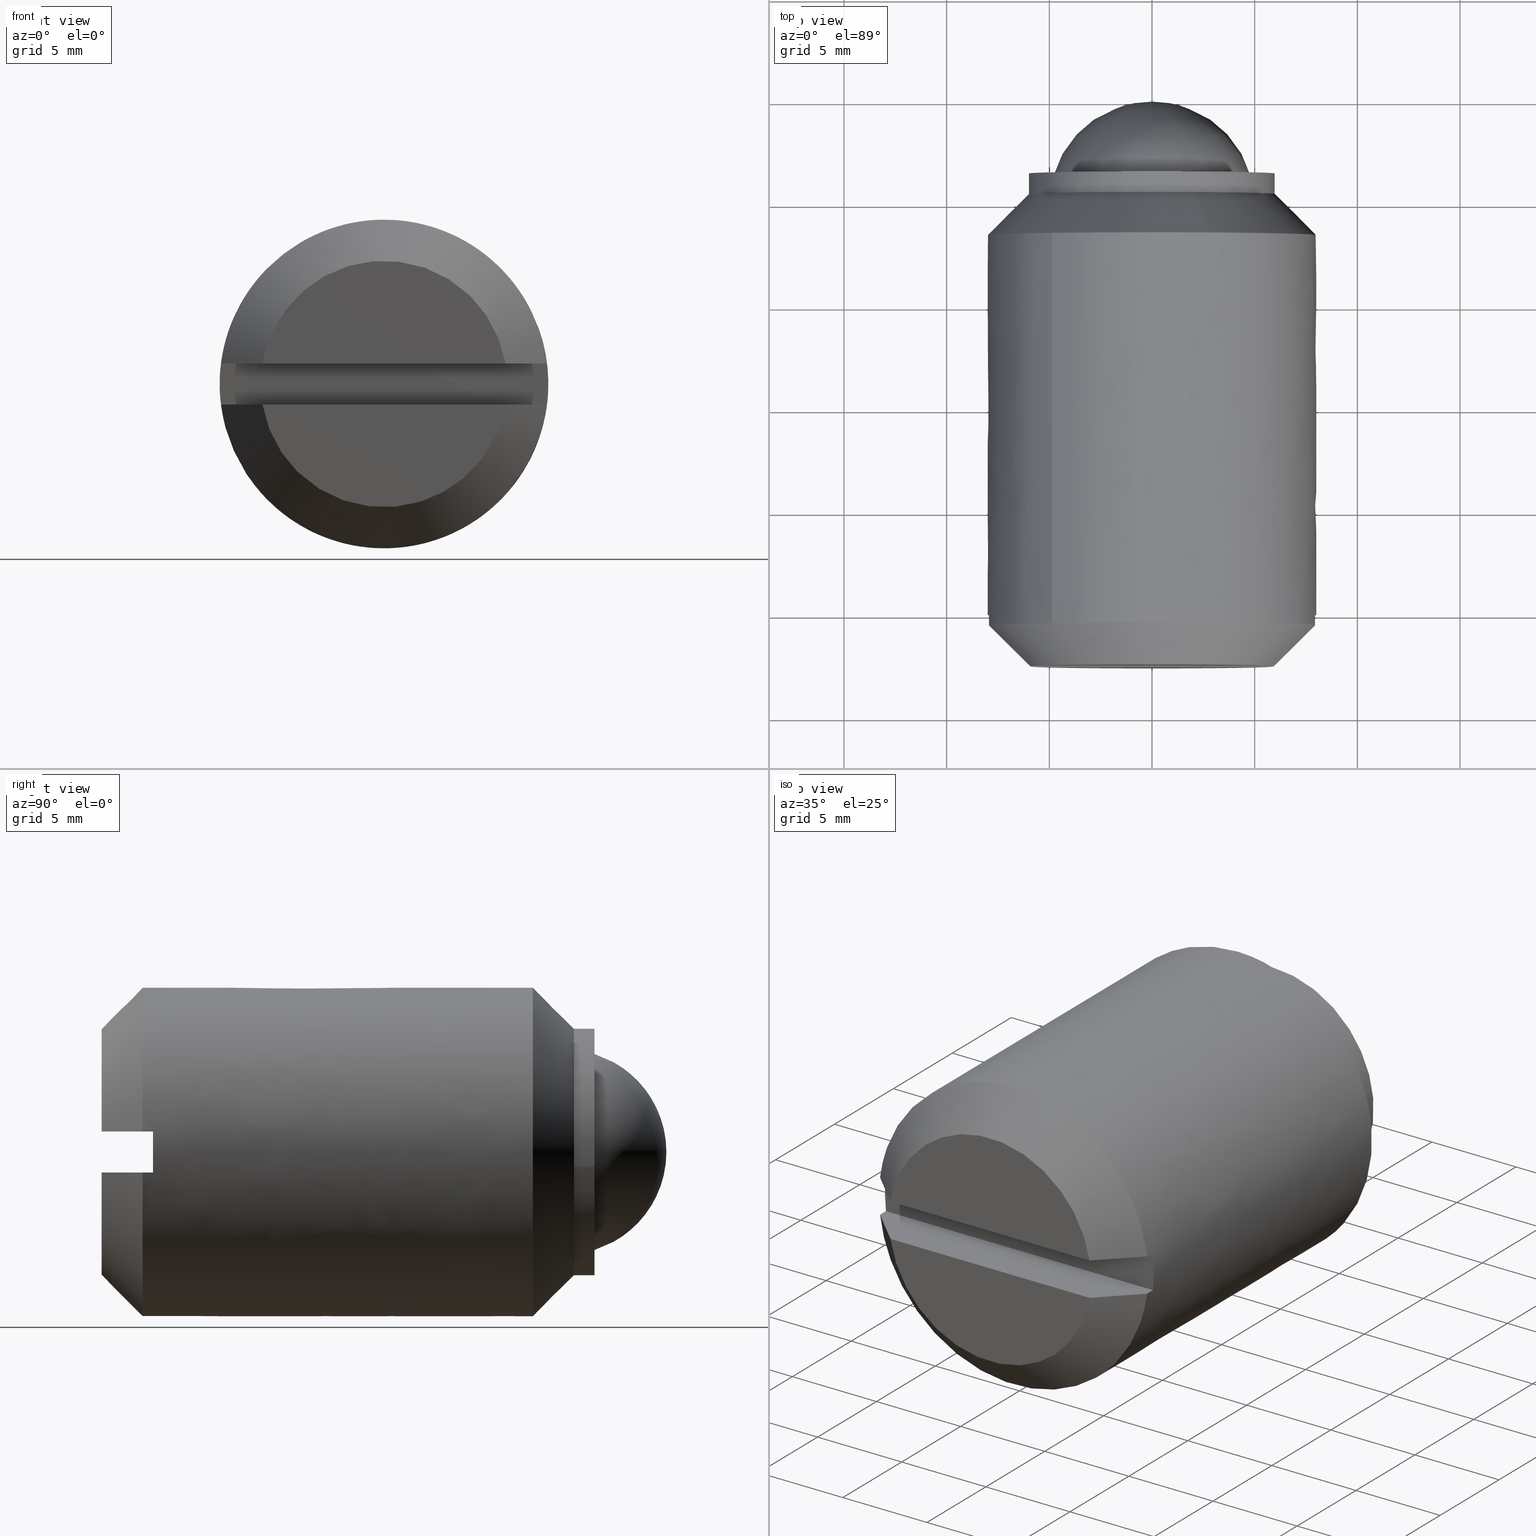
[diagram: canonical four-view strip — front | top / right | iso, engineering-drawing reading convention]
A machine part, canonical four-view strip (front | top / right | iso — engineering-drawing reading convention). The complete STEP part file that produces these views, byte-faithful:
ISO-10303-21;
HEADER;
/****************************************************************
 * Generated by software with PDE/Lib inside                    *
 * PDElib Version 4.4.1-0003, patched  Thursday August 19 11:58 *
 * International Technegroup Inc. (www.iti-oh.com)              *
 ****************************************************************/
FILE_DESCRIPTION((''),'2;1');
FILE_NAME('','2005-07-15T11:24:49',(''),(''),'','CADfix','');
FILE_SCHEMA(('AUTOMOTIVE_DESIGN'));
ENDSEC;
DATA;
#5=APPLICATION_CONTEXT('automotive design');
#6=APPLICATION_PROTOCOL_DEFINITION('Draft International Standard','automotive_design',1998,#5);
#7=PRODUCT_CONTEXT('None',#5,'mechanical');
#8=PRODUCT('body','','None',(#7));
#9=PRODUCT_RELATED_PRODUCT_CATEGORY('part','description',(#8));
#10=PRODUCT_DEFINITION_FORMATION('None','None',#8);
#11=PRODUCT_DEFINITION_CONTEXT('part definition',#5,'design');
#12=PRODUCT_DEFINITION('None','None',#10,#11);
#18=(NAMED_UNIT(*)PLANE_ANGLE_UNIT()SI_UNIT($,.RADIAN.));
#19=DIMENSIONAL_EXPONENTS(0.0,0.0,0.0,0.0,0.0,0.0,0.0);
#20=PLANE_ANGLE_MEASURE_WITH_UNIT(PLANE_ANGLE_MEASURE(0.017453292500000),#18);
#24=(CONVERSION_BASED_UNIT('DEGREE',#20)NAMED_UNIT(#19)PLANE_ANGLE_UNIT());
#28=(NAMED_UNIT(*)SI_UNIT($,.STERADIAN.)SOLID_ANGLE_UNIT());
#32=(LENGTH_UNIT()NAMED_UNIT(*)SI_UNIT(.MILLI.,.METRE.));
#34=UNCERTAINTY_MEASURE_WITH_UNIT(LENGTH_MEASURE(0.001000000000000),#32,'DISTANCE_ACCURACY_VALUE','');
#36=(GEOMETRIC_REPRESENTATION_CONTEXT(3)GLOBAL_UNCERTAINTY_ASSIGNED_CONTEXT((#34))GLOBAL_UNIT_ASSIGNED_CONTEXT((#24,#28,#32))REPRESENTATION_CONTEXT('None','None'));
#37=AXIS2_PLACEMENT_3D('',#38,#39,#40);
#38=CARTESIAN_POINT('',(0.0,0.0,0.0));
#39=DIRECTION('',(0.0,0.0,1.0));
#40=DIRECTION('',(1.0,0.0,0.0));
#41=ADVANCED_BREP_SHAPE_REPRESENTATION('',(#37,#1005,#1216),#36);
#42=PRODUCT_DEFINITION_SHAPE('','',#12);
#43=SHAPE_DEFINITION_REPRESENTATION(#42,#41);
#44=CARTESIAN_POINT('',(-4.956289262287992,-3.212499999999949,0.663854409374842));
#45=CARTESIAN_POINT('',(-4.960680794989533,-3.212499999999948,0.626908909447232));
#46=CARTESIAN_POINT('',(-4.981938077243028,-3.212499999999948,0.448073643189888));
#47=CARTESIAN_POINT('',(-4.990673992109334,-3.212499999999948,0.305242697674285));
#48=CARTESIAN_POINT('',(-5.295916689783620,-3.212499999999949,-4.685431294435048));
#49=CARTESIAN_POINT('',(-0.305242697674285,-3.212499999999948,-4.990673992109334));
#50=CARTESIAN_POINT('',(4.685431294435048,-3.212499999999949,-5.295916689783620));
#51=CARTESIAN_POINT('',(4.992869214649852,-3.212499999999948,-0.269351126398936));
#52=CARTESIAN_POINT('',(4.995051397288224,-3.212499999999947,-0.233672755639073));
#53=CARTESIAN_POINT('',(-4.956289262287992,-15.294687500000000,0.663854409374842));
#54=CARTESIAN_POINT('',(-4.960680794989533,-15.294687500000004,0.626908909447232));
#55=CARTESIAN_POINT('',(-4.981938077243028,-15.294687500000006,0.448073643189888));
#56=CARTESIAN_POINT('',(-4.990673992109334,-15.294687500000000,0.305242697674285));
#57=CARTESIAN_POINT('',(-5.295916689783620,-15.294687500000007,-4.685431294435048));
#58=CARTESIAN_POINT('',(-0.305242697674285,-15.294687500000000,-4.990673992109334));
#59=CARTESIAN_POINT('',(4.685431294435048,-15.294687500000007,-5.295916689783620));
#60=CARTESIAN_POINT('',(4.992869214649852,-15.294687500000000,-0.269351126398936));
#61=CARTESIAN_POINT('',(4.995051397288224,-15.294687499999997,-0.233672755639073));
#69=(BOUNDED_SURFACE()B_SPLINE_SURFACE(2,1,((#44,#53),(#45,#54),(#46,#55),(#47,#56),(#48,#57),(#49,#58),(#50,#59),(#51,#60),(#52,#61)),.UNSPECIFIED.,.F.,.F.,.U.)B_SPLINE_SURFACE_WITH_KNOTS((3,1,2,2,1,3),(2,2),(0.0,0.084499622985166,0.415870472883642,8.700141720345542,16.984412967807440,17.068921047656069),(0.0,12.082187500000060),.UNSPECIFIED.)GEOMETRIC_REPRESENTATION_ITEM()RATIONAL_B_SPLINE_SURFACE(((0.972008777204439,0.972008777204439),(0.974757288999783,0.974757288999783),(0.988284271247462,0.988284271247462),(1.0,1.0),(0.707106781186548,0.707106781186548),(1.0,1.0),(0.707106781186548,0.707106781186548),(1.002987811816301,1.002987811816301),(1.005975623632602,1.005975623632602)))REPRESENTATION_ITEM('')SURFACE());
#70=CARTESIAN_POINT('',(-4.965047630199319,-15.0,0.590171186904374));
#71=VERTEX_POINT('',#70);
#72=CARTESIAN_POINT('',(0.0,-15.0,-5.0));
#73=VERTEX_POINT('',#72);
#74=CARTESIAN_POINT('',(-4.965047630199320,-15.0,0.590171186904374));
#75=CARTESIAN_POINT('',(-5.000000000000002,-15.0,0.296120612024127));
#76=CARTESIAN_POINT('',(-5.0,-15.0,0.0));
#77=CARTESIAN_POINT('',(-5.000000000000001,-14.999999999999995,-5.000000000000001));
#78=CARTESIAN_POINT('',(0.0,-15.0,-5.0));
#86=(BOUNDED_CURVE()B_SPLINE_CURVE(2,(#74,#75,#76,#77,#78),.UNSPECIFIED.,.F.,.U.)B_SPLINE_CURVE_WITH_KNOTS((3,2,3),(0.229562472588393,0.250000000000000,0.500000000000000),.UNSPECIFIED.)CURVE()GEOMETRIC_REPRESENTATION_ITEM()RATIONAL_B_SPLINE_CURVE((0.956026752370436,0.976055947247305,1.0,0.707106781186548,1.0))REPRESENTATION_ITEM(''));
#87=EDGE_CURVE('',#71,#73,#86,.T.);
#88=ORIENTED_EDGE('',*,*,#87,.T.);
#89=CARTESIAN_POINT('',(4.990674433589232,-14.999999999999980,-0.305235479370436));
#90=VERTEX_POINT('',#89);
#91=CARTESIAN_POINT('',(0.0,-15.0,-5.0));
#92=CARTESIAN_POINT('',(4.703537150236342,-15.000000000000007,-4.999999999999999));
#93=CARTESIAN_POINT('',(4.990674433589232,-14.999999999999980,-0.305235479370436));
#101=(BOUNDED_CURVE()B_SPLINE_CURVE(2,(#91,#92,#93),.UNSPECIFIED.,.F.,.U.)B_SPLINE_CURVE_WITH_KNOTS((3,3),(0.500000000000000,0.739333211806534),.UNSPECIFIED.)CURVE()GEOMETRIC_REPRESENTATION_ITEM()RATIONAL_B_SPLINE_CURVE((1.0,0.719603700900090,0.976072576538157))REPRESENTATION_ITEM(''));
#102=EDGE_CURVE('',#73,#90,#101,.T.);
#103=ORIENTED_EDGE('',*,*,#102,.T.);
#104=CARTESIAN_POINT('',(4.990674428145695,-3.499999999999950,-0.305235568375665));
#105=VERTEX_POINT('',#104);
#106=CARTESIAN_POINT('',(4.990674428145695,-3.499999999999950,-0.305235568375665));
#107=CARTESIAN_POINT('',(4.990674433589232,-14.999999999999980,-0.305235479370436));
#108=QUASI_UNIFORM_CURVE('',1,(#106,#107),.UNSPECIFIED.,.F.,.U.);
#109=EDGE_CURVE('',#105,#90,#108,.T.);
#110=ORIENTED_EDGE('',*,*,#109,.F.);
#111=CARTESIAN_POINT('',(0.0,-3.499999999999950,-5.0));
#112=VERTEX_POINT('',#111);
#113=CARTESIAN_POINT('',(0.0,-3.499999999999950,-5.0));
#114=CARTESIAN_POINT('',(4.703537066195270,-3.499999999999950,-5.000000000000001));
#115=CARTESIAN_POINT('',(4.990674428145695,-3.499999999999951,-0.305235568375665));
#123=(BOUNDED_CURVE()B_SPLINE_CURVE(2,(#113,#114,#115),.UNSPECIFIED.,.F.,.U.)B_SPLINE_CURVE_WITH_KNOTS((3,3),(0.500000000000000,0.739333208729280),.UNSPECIFIED.)CURVE()GEOMETRIC_REPRESENTATION_ITEM()RATIONAL_B_SPLINE_CURVE((1.0,0.719603704505317,0.976072569943001))REPRESENTATION_ITEM(''));
#124=EDGE_CURVE('',#112,#105,#123,.T.);
#125=ORIENTED_EDGE('',*,*,#124,.F.);
#126=CARTESIAN_POINT('',(-4.965047630199319,-3.499999999999950,0.590171186904374));
#127=VERTEX_POINT('',#126);
#128=CARTESIAN_POINT('',(-4.965047630199320,-3.499999999999951,0.590171186904374));
#129=CARTESIAN_POINT('',(-5.000000000000002,-3.499999999999950,0.296120612024127));
#130=CARTESIAN_POINT('',(-5.0,-3.499999999999950,0.0));
#131=CARTESIAN_POINT('',(-5.000000000000001,-3.499999999999949,-5.000000000000001));
#132=CARTESIAN_POINT('',(0.0,-3.499999999999950,-5.0));
#140=(BOUNDED_CURVE()B_SPLINE_CURVE(2,(#128,#129,#130,#131,#132),.UNSPECIFIED.,.F.,.U.)B_SPLINE_CURVE_WITH_KNOTS((3,2,3),(0.229562472588393,0.250000000000000,0.500000000000000),.UNSPECIFIED.)CURVE()GEOMETRIC_REPRESENTATION_ITEM()RATIONAL_B_SPLINE_CURVE((0.956026752370436,0.976055947247305,1.0,0.707106781186548,1.0))REPRESENTATION_ITEM(''));
#141=EDGE_CURVE('',#127,#112,#140,.T.);
#142=ORIENTED_EDGE('',*,*,#141,.F.);
#143=CARTESIAN_POINT('',(-4.965047630199319,-3.499999999999950,0.590171186904374));
#144=CARTESIAN_POINT('',(-4.965047630199319,-15.0,0.590171186904374));
#145=QUASI_UNIFORM_CURVE('',1,(#143,#144),.UNSPECIFIED.,.F.,.U.);
#146=EDGE_CURVE('',#127,#71,#145,.T.);
#147=ORIENTED_EDGE('',*,*,#146,.T.);
#148=EDGE_LOOP('',(#88,#103,#110,#125,#142,#147));
#149=FACE_OUTER_BOUND('',#148,.T.);
#150=ADVANCED_FACE('',(#149),#69,.F.);
#151=CARTESIAN_POINT('',(4.990673992109334,-3.212499999999948,-0.305242697674285));
#152=CARTESIAN_POINT('',(5.295916689783620,-3.212499999999949,4.685431294435048));
#153=CARTESIAN_POINT('',(0.305242697674285,-3.212499999999948,4.990673992109334));
#154=CARTESIAN_POINT('',(-4.407717454197504,-3.212499999999949,5.278930983662638));
#155=CARTESIAN_POINT('',(-4.965047631818332,-3.212499999999948,0.590171173283792));
#156=CARTESIAN_POINT('',(4.990673992109334,-15.294687500000000,-0.305242697674285));
#157=CARTESIAN_POINT('',(5.295916689783620,-15.294687500000007,4.685431294435048));
#158=CARTESIAN_POINT('',(0.305242697674285,-15.294687500000000,4.990673992109334));
#159=CARTESIAN_POINT('',(-4.407717454197504,-15.294687500000000,5.278930983662638));
#160=CARTESIAN_POINT('',(-4.965047631818332,-15.294687500000006,0.590171173283792));
#168=(BOUNDED_SURFACE()B_SPLINE_SURFACE(2,1,((#151,#156),(#152,#157),(#153,#158),(#154,#159),(#155,#160)),.UNSPECIFIED.,.F.,.F.,.U.)B_SPLINE_SURFACE_WITH_KNOTS((3,2,3),(2,2),(0.0,8.284271247461899,16.237171645025320),(0.0,12.082187500000060),.UNSPECIFIED.)GEOMETRIC_REPRESENTATION_ITEM()RATIONAL_B_SPLINE_SURFACE(((1.0,1.0),(0.707106781186548,0.707106781186548),(1.0,1.0),(0.718822509939086,0.718822509939086),(0.977505800795127,0.977505800795127)))REPRESENTATION_ITEM('')SURFACE());
#169=CARTESIAN_POINT('',(0.0,-15.0,5.0));
#170=VERTEX_POINT('',#169);
#171=CARTESIAN_POINT('',(0.0,-15.0,5.0));
#172=CARTESIAN_POINT('',(-4.440872605220082,-14.999999999999996,5.0));
#173=CARTESIAN_POINT('',(-4.965047630199320,-15.0,0.590171186904374));
#181=(BOUNDED_CURVE()B_SPLINE_CURVE(2,(#171,#172,#173),.UNSPECIFIED.,.F.,.U.)B_SPLINE_CURVE_WITH_KNOTS((3,3),(0.0,0.229562472588393),.UNSPECIFIED.)CURVE()GEOMETRIC_REPRESENTATION_ITEM()RATIONAL_B_SPLINE_CURVE((1.0,0.731050833939242,0.956026752370436))REPRESENTATION_ITEM(''));
#182=EDGE_CURVE('',#170,#71,#181,.T.);
#183=ORIENTED_EDGE('',*,*,#182,.T.);
#184=ORIENTED_EDGE('',*,*,#146,.F.);
#185=CARTESIAN_POINT('',(0.0,-3.499999999999950,5.0));
#186=VERTEX_POINT('',#185);
#187=CARTESIAN_POINT('',(0.0,-3.499999999999950,5.0));
#188=CARTESIAN_POINT('',(-4.440872605220082,-3.499999999999950,5.0));
#189=CARTESIAN_POINT('',(-4.965047630199320,-3.499999999999951,0.590171186904374));
#197=(BOUNDED_CURVE()B_SPLINE_CURVE(2,(#187,#188,#189),.UNSPECIFIED.,.F.,.U.)B_SPLINE_CURVE_WITH_KNOTS((3,3),(0.0,0.229562472588393),.UNSPECIFIED.)CURVE()GEOMETRIC_REPRESENTATION_ITEM()RATIONAL_B_SPLINE_CURVE((1.0,0.731050833939242,0.956026752370436))REPRESENTATION_ITEM(''));
#198=EDGE_CURVE('',#186,#127,#197,.T.);
#199=ORIENTED_EDGE('',*,*,#198,.F.);
#200=CARTESIAN_POINT('',(4.990674428145695,-3.499999999999951,-0.305235568375665));
#201=CARTESIAN_POINT('',(5.000000000000001,-3.499999999999950,-0.152760241849095));
#202=CARTESIAN_POINT('',(5.0,-3.499999999999950,0.0));
#203=CARTESIAN_POINT('',(5.000000000000001,-3.499999999999949,5.000000000000001));
#204=CARTESIAN_POINT('',(0.0,-3.499999999999950,5.0));
#212=(BOUNDED_CURVE()B_SPLINE_CURVE(2,(#200,#201,#202,#203,#204),.UNSPECIFIED.,.F.,.U.)B_SPLINE_CURVE_WITH_KNOTS((3,2,3),(0.739333208729280,0.750000000000000,1.0),.UNSPECIFIED.)CURVE()GEOMETRIC_REPRESENTATION_ITEM()RATIONAL_B_SPLINE_CURVE((0.976072569943001,0.987503076681231,1.0,0.707106781186548,1.0))REPRESENTATION_ITEM(''));
#213=EDGE_CURVE('',#105,#186,#212,.T.);
#214=ORIENTED_EDGE('',*,*,#213,.F.);
#215=ORIENTED_EDGE('',*,*,#109,.T.);
#216=CARTESIAN_POINT('',(4.990674433589232,-14.999999999999980,-0.305235479370436));
#217=CARTESIAN_POINT('',(5.000000000000001,-15.000000000000002,-0.152760197221710));
#218=CARTESIAN_POINT('',(5.0,-15.0,0.0));
#219=CARTESIAN_POINT('',(5.000000000000001,-14.999999999999995,5.000000000000001));
#220=CARTESIAN_POINT('',(0.0,-15.0,5.0));
#228=(BOUNDED_CURVE()B_SPLINE_CURVE(2,(#216,#217,#218,#219,#220),.UNSPECIFIED.,.F.,.U.)B_SPLINE_CURVE_WITH_KNOTS((3,2,3),(0.739333211806534,0.750000000000000,1.0),.UNSPECIFIED.)CURVE()GEOMETRIC_REPRESENTATION_ITEM()RATIONAL_B_SPLINE_CURVE((0.976072576538157,0.987503080286458,1.0,0.707106781186548,1.0))REPRESENTATION_ITEM(''));
#229=EDGE_CURVE('',#90,#170,#228,.T.);
#230=ORIENTED_EDGE('',*,*,#229,.T.);
#231=EDGE_LOOP('',(#183,#184,#199,#214,#215,#230));
#232=FACE_OUTER_BOUND('',#231,.T.);
#233=ADVANCED_FACE('',(#232),#168,.F.);
#234=CARTESIAN_POINT('',(2.092126947629854,-4.449999999999999,5.570054293721109));
#235=CARTESIAN_POINT('',(1.255387237706679,-4.449999999999999,5.884335915222644));
#236=CARTESIAN_POINT('',(0.363238810232399,-4.449999999999999,5.938902050610105));
#237=CARTESIAN_POINT('',(-5.575663240377707,-4.449999999999999,6.302140860842505));
#238=CARTESIAN_POINT('',(-5.938902050610107,-4.449999999999999,0.363238810232397));
#239=CARTESIAN_POINT('',(2.830964216320147,-6.551250000000001,7.537125988625564));
#240=CARTESIAN_POINT('',(1.698728823123682,-6.551250000000002,7.962396560913672));
#241=CARTESIAN_POINT('',(0.491517053930018,-6.551250000000001,8.036232795794058));
#242=CARTESIAN_POINT('',(-7.544715741864042,-6.551250000000001,8.527749849724076));
#243=CARTESIAN_POINT('',(-8.036232795794060,-6.551250000000001,0.491517053930016));
#251=(BOUNDED_SURFACE()B_SPLINE_SURFACE(2,1,((#234,#239),(#235,#240),(#236,#241),(#237,#242),(#238,#243)),.UNSPECIFIED.,.F.,.F.,.U.)B_SPLINE_SURFACE_WITH_KNOTS((3,2,3),(2,2),(0.0,2.667949555245106,16.007697331470641),(0.0,2.971616247936472),.UNSPECIFIED.)GEOMETRIC_REPRESENTATION_ITEM()RATIONAL_B_SPLINE_SURFACE(((0.906274169979695,0.906274169979695),(0.941421356237309,0.941421356237309),(1.0,1.0),(0.707106781186548,0.707106781186548),(1.0,1.0)))REPRESENTATION_ITEM('')SURFACE());
#252=CARTESIAN_POINT('',(2.109707846364373,-4.500000000001468,5.616861472655899));
#253=VERTEX_POINT('',#252);
#254=CARTESIAN_POINT('',(0.0,-4.500000000000000,5.999999999999998));
#255=VERTEX_POINT('',#254);
#256=CARTESIAN_POINT('',(2.109707846364373,-4.500000000001468,5.616861472655900));
#257=CARTESIAN_POINT('',(1.089644316416480,-4.500000000000001,5.999999999999998));
#258=CARTESIAN_POINT('',(0.0,-4.500000000000000,5.999999999999998));
#266=(BOUNDED_CURVE()B_SPLINE_CURVE(2,(#256,#257,#258),.UNSPECIFIED.,.F.,.U.)B_SPLINE_CURVE_WITH_KNOTS((3,3),(0.440284170898098,0.500000000000000),.UNSPECIFIED.)CURVE()GEOMETRIC_REPRESENTATION_ITEM()RATIONAL_B_SPLINE_CURVE((0.893499554634773,0.930038554400920,1.0))REPRESENTATION_ITEM(''));
#267=EDGE_CURVE('',#253,#255,#266,.T.);
#268=ORIENTED_EDGE('',*,*,#267,.T.);
#269=CARTESIAN_POINT('',(-5.988808790485078,-4.500000000000000,0.366291237963246));
#270=VERTEX_POINT('',#269);
#271=CARTESIAN_POINT('',(0.0,-4.500000000000000,5.999999999999998));
#272=CARTESIAN_POINT('',(-5.644236398586005,-4.500000000000000,5.999999999999998));
#273=CARTESIAN_POINT('',(-5.988808790485078,-4.500000000000000,0.366291237963246));
#281=(BOUNDED_CURVE()B_SPLINE_CURVE(2,(#271,#272,#273),.UNSPECIFIED.,.F.,.U.)B_SPLINE_CURVE_WITH_KNOTS((3,3),(0.500000000000000,0.739332962155061),.UNSPECIFIED.)CURVE()GEOMETRIC_REPRESENTATION_ITEM()RATIONAL_B_SPLINE_CURVE((1.0,0.719603993384984,0.976072041486943))REPRESENTATION_ITEM(''));
#282=EDGE_CURVE('',#255,#270,#281,.T.);
#283=ORIENTED_EDGE('',*,*,#282,.T.);
#284=CARTESIAN_POINT('',(-7.985078387376499,-6.500000000002911,0.488388316301027));
#285=VERTEX_POINT('',#284);
#286=CARTESIAN_POINT('',(-5.988808790485078,-4.500000000000000,0.366291237963246));
#287=CARTESIAN_POINT('',(-7.985078387376499,-6.500000000002911,0.488388316301027));
#288=QUASI_UNIFORM_CURVE('',1,(#286,#287),.UNSPECIFIED.,.F.,.U.);
#289=EDGE_CURVE('',#270,#285,#288,.T.);
#290=ORIENTED_EDGE('',*,*,#289,.T.);
#291=CARTESIAN_POINT('',(-4.870091037611219,-6.500000000000000,6.346827025008528));
#292=VERTEX_POINT('',#291);
#293=CARTESIAN_POINT('',(-4.870091037611219,-6.500000000000000,6.346827025008528));
#294=CARTESIAN_POINT('',(-7.762506972072580,-6.500000000000001,4.127398789254261));
#295=CARTESIAN_POINT('',(-7.985078387376499,-6.500000000002911,0.488388316301027));
#303=(BOUNDED_CURVE()B_SPLINE_CURVE(2,(#293,#294,#295),.UNSPECIFIED.,.F.,.U.)B_SPLINE_CURVE_WITH_KNOTS((3,3),(0.605220491557171,0.739332962241018),.UNSPECIFIED.)CURVE()GEOMETRIC_REPRESENTATION_ITEM()RATIONAL_B_SPLINE_CURVE((0.857220216439686,0.832357764713392,0.976072041671164))REPRESENTATION_ITEM(''));
#304=EDGE_CURVE('',#292,#285,#303,.T.);
#305=ORIENTED_EDGE('',*,*,#304,.F.);
#306=CARTESIAN_POINT('',(0.0,-6.500000000000000,7.999999999999998));
#307=VERTEX_POINT('',#306);
#308=CARTESIAN_POINT('',(0.0,-6.500000000000000,7.999999999999998));
#309=CARTESIAN_POINT('',(-2.715633516410479,-6.499999999999999,7.999999999999999));
#310=CARTESIAN_POINT('',(-4.870091037611219,-6.500000000000000,6.346827025008528));
#318=(BOUNDED_CURVE()B_SPLINE_CURVE(2,(#308,#309,#310),.UNSPECIFIED.,.F.,.U.)B_SPLINE_CURVE_WITH_KNOTS((3,3),(0.500000000000000,0.605220491557170),.UNSPECIFIED.)CURVE()GEOMETRIC_REPRESENTATION_ITEM()RATIONAL_B_SPLINE_CURVE((1.0,0.876726526170748,0.857220216439686))REPRESENTATION_ITEM(''));
#319=EDGE_CURVE('',#307,#292,#318,.T.);
#320=ORIENTED_EDGE('',*,*,#319,.F.);
#321=CARTESIAN_POINT('',(2.812943795133173,-6.500000000000057,7.489148630213096));
#322=VERTEX_POINT('',#321);
#323=CARTESIAN_POINT('',(2.812943795133174,-6.500000000000057,7.489148630213097));
#324=CARTESIAN_POINT('',(1.452859088534721,-6.500000000000001,7.999999999999997));
#325=CARTESIAN_POINT('',(0.0,-6.500000000000000,7.999999999999998));
#333=(BOUNDED_CURVE()B_SPLINE_CURVE(2,(#323,#324,#325),.UNSPECIFIED.,.F.,.U.)B_SPLINE_CURVE_WITH_KNOTS((3,3),(0.440284170898885,0.500000000000000),.UNSPECIFIED.)CURVE()GEOMETRIC_REPRESENTATION_ITEM()RATIONAL_B_SPLINE_CURVE((0.893499554635736,0.930038554401842,1.0))REPRESENTATION_ITEM(''));
#334=EDGE_CURVE('',#322,#307,#333,.T.);
#335=ORIENTED_EDGE('',*,*,#334,.F.);
#336=CARTESIAN_POINT('',(2.109707846364373,-4.500000000001468,5.616861472655899));
#337=CARTESIAN_POINT('',(2.812943795133173,-6.500000000000057,7.489148630213096));
#338=QUASI_UNIFORM_CURVE('',1,(#336,#337),.UNSPECIFIED.,.F.,.U.);
#339=EDGE_CURVE('',#253,#322,#338,.T.);
#340=ORIENTED_EDGE('',*,*,#339,.F.);
#341=EDGE_LOOP('',(#268,#283,#290,#305,#320,#335,#340));
#342=FACE_OUTER_BOUND('',#341,.T.);
#343=ADVANCED_FACE('',(#342),#251,.T.);
#344=CARTESIAN_POINT('',(-5.938902050610107,-4.449999999999999,0.363238810232397));
#345=CARTESIAN_POINT('',(-6.302140860842505,-4.449999999999999,-5.575663240377710));
#346=CARTESIAN_POINT('',(-0.363238810232399,-4.449999999999999,-5.938902050610109));
#347=CARTESIAN_POINT('',(5.575663240377707,-4.449999999999999,-6.302140860842508));
#348=CARTESIAN_POINT('',(5.938902050610107,-4.449999999999999,-0.363238810232401));
#349=CARTESIAN_POINT('',(6.207261476072584,-4.449999999999999,4.024399011728236));
#350=CARTESIAN_POINT('',(2.092126947629854,-4.449999999999999,5.570054293721109));
#351=CARTESIAN_POINT('',(-8.036232795794060,-6.551250000000001,0.491517053930016));
#352=CARTESIAN_POINT('',(-8.527749849724078,-6.551250000000001,-7.544715741864044));
#353=CARTESIAN_POINT('',(-0.491517053930018,-6.551250000000001,-8.036232795794062));
#354=CARTESIAN_POINT('',(7.544715741864042,-6.551250000000001,-8.527749849724080));
#355=CARTESIAN_POINT('',(8.036232795794060,-6.551250000000001,-0.491517053930019));
#356=CARTESIAN_POINT('',(8.399363690626794,-6.551250000000001,5.445620595491931));
#357=CARTESIAN_POINT('',(2.830964216320147,-6.551250000000001,7.537125988625564));
#365=(BOUNDED_SURFACE()B_SPLINE_SURFACE(2,1,((#344,#351),(#345,#352),(#346,#353),(#347,#354),(#348,#355),(#349,#356),(#350,#357)),.UNSPECIFIED.,.F.,.F.,.U.)B_SPLINE_SURFACE_WITH_KNOTS((3,2,2,3),(2,2),(0.0,13.339747776225529,26.679495552451058,37.351293773431493),(0.0,2.971616247936471),.UNSPECIFIED.)GEOMETRIC_REPRESENTATION_ITEM()RATIONAL_B_SPLINE_SURFACE(((1.0,1.0),(0.707106781186548,0.707106781186548),(1.0,1.0),(0.707106781186548,0.707106781186548),(1.0,1.0),(0.765685424949238,0.765685424949238),(0.906274169979695,0.906274169979695)))REPRESENTATION_ITEM('')SURFACE());
#366=CARTESIAN_POINT('',(5.958058000617179,-4.499999999999801,-0.708198320550592));
#367=VERTEX_POINT('',#366);
#368=CARTESIAN_POINT('',(5.958058000617180,-4.499999999999801,-0.708198320550592));
#369=CARTESIAN_POINT('',(5.999999999999999,-4.500000000000001,-0.355341136753624));
#370=CARTESIAN_POINT('',(6.0,-4.500000000000000,-1.806294E-015));
#371=CARTESIAN_POINT('',(6.000000000000001,-4.500000000000000,4.155657574143719));
#372=CARTESIAN_POINT('',(2.109707846364373,-4.500000000001468,5.616861472655900));
#380=(BOUNDED_CURVE()B_SPLINE_CURVE(2,(#368,#369,#370,#371,#372),.UNSPECIFIED.,.F.,.U.)B_SPLINE_CURVE_WITH_KNOTS((3,2,3),(0.229562674552993,0.250000000000000,0.440284170898098),.UNSPECIFIED.)CURVE()GEOMETRIC_REPRESENTATION_ITEM()RATIONAL_B_SPLINE_CURVE((0.956027148229696,0.976056183863552,1.0,0.777068226785628,0.893499554634773))REPRESENTATION_ITEM(''));
#381=EDGE_CURVE('',#367,#253,#380,.T.);
#382=ORIENTED_EDGE('',*,*,#381,.T.);
#383=ORIENTED_EDGE('',*,*,#339,.T.);
#384=CARTESIAN_POINT('',(0.0,-6.500000000000000,-8.000000000000002));
#385=VERTEX_POINT('',#384);
#386=CARTESIAN_POINT('',(0.0,-6.500000000000000,-8.000000000000002));
#387=CARTESIAN_POINT('',(8.0,-6.500000000000001,-8.000000000000002));
#388=CARTESIAN_POINT('',(8.0,-6.500000000000000,-1.806294E-015));
#389=CARTESIAN_POINT('',(8.0,-6.500000000000000,5.540876765554441));
#390=CARTESIAN_POINT('',(2.812943795133173,-6.500000000000057,7.489148630213096));
#398=(BOUNDED_CURVE()B_SPLINE_CURVE(2,(#386,#387,#388,#389,#390),.UNSPECIFIED.,.F.,.U.)B_SPLINE_CURVE_WITH_KNOTS((3,2,3),(0.0,0.250000000000000,0.440284170898885),.UNSPECIFIED.)CURVE()GEOMETRIC_REPRESENTATION_ITEM()RATIONAL_B_SPLINE_CURVE((1.0,0.707106781186548,1.0,0.777068226784706,0.893499554635736))REPRESENTATION_ITEM(''));
#399=EDGE_CURVE('',#385,#322,#398,.T.);
#400=ORIENTED_EDGE('',*,*,#399,.F.);
#401=CARTESIAN_POINT('',(-7.310556275005265,-6.500000000000000,-3.248963981022425));
#402=VERTEX_POINT('',#401);
#403=CARTESIAN_POINT('',(-7.310556275005265,-6.500000000000001,-3.248963981022424));
#404=CARTESIAN_POINT('',(-5.199096749012838,-6.500000000000000,-8.000000000000002));
#405=CARTESIAN_POINT('',(0.0,-6.500000000000000,-8.000000000000002));
#413=(BOUNDED_CURVE()B_SPLINE_CURVE(2,(#403,#404,#405),.UNSPECIFIED.,.F.,.U.)B_SPLINE_CURVE_WITH_KNOTS((3,3),(0.818963736983759,1.0),.UNSPECIFIED.)CURVE()GEOMETRIC_REPRESENTATION_ITEM()RATIONAL_B_SPLINE_CURVE((0.882983889563165,0.787902824812858,1.0))REPRESENTATION_ITEM(''));
#414=EDGE_CURVE('',#402,#385,#413,.T.);
#415=ORIENTED_EDGE('',*,*,#414,.F.);
#416=CARTESIAN_POINT('',(-7.985078387376499,-6.500000000002911,0.488388316301027));
#417=CARTESIAN_POINT('',(-8.0,-6.500000000000000,0.244422106410766));
#418=CARTESIAN_POINT('',(-8.0,-6.500000000000000,-1.806294E-015));
#419=CARTESIAN_POINT('',(-8.0,-6.500000000000001,-1.697633287639437));
#420=CARTESIAN_POINT('',(-7.310556275005265,-6.500000000000000,-3.248963981022425));
#428=(BOUNDED_CURVE()B_SPLINE_CURVE(2,(#416,#417,#418,#419,#420),.UNSPECIFIED.,.F.,.U.)B_SPLINE_CURVE_WITH_KNOTS((3,2,3),(0.739332962241018,0.750000000000000,0.818963736983760),.UNSPECIFIED.)CURVE()GEOMETRIC_REPRESENTATION_ITEM()RATIONAL_B_SPLINE_CURVE((0.976072041671165,0.987502787902268,1.0,0.919203956373688,0.882983889563164))REPRESENTATION_ITEM(''));
#429=EDGE_CURVE('',#285,#402,#428,.T.);
#430=ORIENTED_EDGE('',*,*,#429,.F.);
#431=ORIENTED_EDGE('',*,*,#289,.F.);
#432=CARTESIAN_POINT('',(0.0,-4.500000000000000,-6.000000000000002));
#433=VERTEX_POINT('',#432);
#434=CARTESIAN_POINT('',(-5.988808790485078,-4.500000000000000,0.366291237963247));
#435=CARTESIAN_POINT('',(-6.0,-4.500000000000001,0.183316581303974));
#436=CARTESIAN_POINT('',(-6.0,-4.500000000000000,-1.806294E-015));
#437=CARTESIAN_POINT('',(-6.0,-4.500000000000000,-6.000000000000003));
#438=CARTESIAN_POINT('',(0.0,-4.500000000000000,-6.000000000000002));
#446=(BOUNDED_CURVE()B_SPLINE_CURVE(2,(#434,#435,#436,#437,#438),.UNSPECIFIED.,.F.,.U.)B_SPLINE_CURVE_WITH_KNOTS((3,2,3),(0.739332962155060,0.750000000000000,1.0),.UNSPECIFIED.)CURVE()GEOMETRIC_REPRESENTATION_ITEM()RATIONAL_B_SPLINE_CURVE((0.976072041486941,0.987502787801563,1.0,0.707106781186548,1.0))REPRESENTATION_ITEM(''));
#447=EDGE_CURVE('',#270,#433,#446,.T.);
#448=ORIENTED_EDGE('',*,*,#447,.T.);
#449=CARTESIAN_POINT('',(0.0,-4.500000000000000,-6.000000000000002));
#450=CARTESIAN_POINT('',(5.329053539489210,-4.499999999999999,-6.000000000000004));
#451=CARTESIAN_POINT('',(5.958058000617180,-4.499999999999801,-0.708198320550592));
#459=(BOUNDED_CURVE()B_SPLINE_CURVE(2,(#449,#450,#451),.UNSPECIFIED.,.F.,.U.)B_SPLINE_CURVE_WITH_KNOTS((3,3),(0.0,0.229562674552993),.UNSPECIFIED.)CURVE()GEOMETRIC_REPRESENTATION_ITEM()RATIONAL_B_SPLINE_CURVE((1.0,0.731050597322995,0.956027148229696))REPRESENTATION_ITEM(''));
#460=EDGE_CURVE('',#433,#367,#459,.T.);
#461=ORIENTED_EDGE('',*,*,#460,.T.);
#462=EDGE_LOOP('',(#382,#383,#400,#415,#430,#431,#448,#461));
#463=FACE_OUTER_BOUND('',#462,.T.);
#464=ADVANCED_FACE('',(#463),#365,.T.);
#465=CARTESIAN_POINT('',(5.958057158181998,-3.475000000000000,-0.708205407940553));
#466=CARTESIAN_POINT('',(5.978325692691634,-3.475000000000000,-0.537688371827868));
#467=CARTESIAN_POINT('',(5.988808790531200,-3.475000000000000,-0.366291237209144));
#468=CARTESIAN_POINT('',(6.355100027740342,-3.475000000000001,5.622517553322058));
#469=CARTESIAN_POINT('',(0.366291237209142,-3.475000000000000,5.988808790531198));
#470=CARTESIAN_POINT('',(-5.622517553322059,-3.475000000000001,6.355100027740340));
#471=CARTESIAN_POINT('',(-5.988808790531200,-3.475000000000000,0.366291237209140));
#472=CARTESIAN_POINT('',(5.958057158181998,-4.525625000000001,-0.708205407940553));
#473=CARTESIAN_POINT('',(5.978325692691634,-4.525625000000001,-0.537688371827868));
#474=CARTESIAN_POINT('',(5.988808790531200,-4.525625000000001,-0.366291237209144));
#475=CARTESIAN_POINT('',(6.355100027740342,-4.525625000000001,5.622517553322058));
#476=CARTESIAN_POINT('',(0.366291237209142,-4.525625000000001,5.988808790531198));
#477=CARTESIAN_POINT('',(-5.622517553322059,-4.525625000000001,6.355100027740340));
#478=CARTESIAN_POINT('',(-5.988808790531200,-4.525625000000001,0.366291237209140));
#486=(BOUNDED_SURFACE()B_SPLINE_SURFACE(2,1,((#465,#472),(#466,#473),(#467,#474),(#468,#475),(#469,#476),(#470,#477),(#471,#478)),.UNSPECIFIED.,.F.,.F.,.U.)B_SPLINE_SURFACE_WITH_KNOTS((3,2,2,3),(2,2),(0.0,0.397645019878172,10.338770516832451,20.279896013786729),(0.0,1.0),.UNSPECIFIED.)GEOMETRIC_REPRESENTATION_ITEM()RATIONAL_B_SPLINE_SURFACE(((0.977505800795127,0.977505800795127),(0.988284271247462,0.988284271247462),(1.0,1.0),(0.707106781186548,0.707106781186548),(1.0,1.0),(0.707106781186548,0.707106781186548),(1.0,1.0)))REPRESENTATION_ITEM('')SURFACE());
#487=ORIENTED_EDGE('',*,*,#381,.F.);
#488=CARTESIAN_POINT('',(5.958057990228132,-3.500000000000000,-0.708198407954307));
#489=VERTEX_POINT('',#488);
#490=CARTESIAN_POINT('',(5.958057990228132,-3.500000000000000,-0.708198407954307));
#491=CARTESIAN_POINT('',(5.958058000617179,-4.499999999999801,-0.708198320550592));
#492=QUASI_UNIFORM_CURVE('',1,(#490,#491),.UNSPECIFIED.,.F.,.U.);
#493=EDGE_CURVE('',#489,#367,#492,.T.);
#494=ORIENTED_EDGE('',*,*,#493,.F.);
#495=CARTESIAN_POINT('',(0.0,-3.500000000000000,5.999999999999998));
#496=VERTEX_POINT('',#495);
#497=CARTESIAN_POINT('',(5.958057990228133,-3.500000000000000,-0.708198407954307));
#498=CARTESIAN_POINT('',(6.0,-3.500000000000000,-0.355341180917476));
#499=CARTESIAN_POINT('',(6.0,-3.500000000000000,-1.806294E-015));
#500=CARTESIAN_POINT('',(6.0,-3.499999999999999,5.999999999999998));
#501=CARTESIAN_POINT('',(0.0,-3.500000000000000,5.999999999999998));
#509=(BOUNDED_CURVE()B_SPLINE_CURVE(2,(#497,#498,#499,#500,#501),.UNSPECIFIED.,.F.,.U.)B_SPLINE_CURVE_WITH_KNOTS((3,2,3),(0.229562672073743,0.250000000000000,0.500000000000000),.UNSPECIFIED.)CURVE()GEOMETRIC_REPRESENTATION_ITEM()RATIONAL_B_SPLINE_CURVE((0.956027143370255,0.976056180958930,1.0,0.707106781186548,1.0))REPRESENTATION_ITEM(''));
#510=EDGE_CURVE('',#489,#496,#509,.T.);
#511=ORIENTED_EDGE('',*,*,#510,.T.);
#512=CARTESIAN_POINT('',(-5.988808790438955,-3.500000000000000,0.366291238717353));
#513=VERTEX_POINT('',#512);
#514=CARTESIAN_POINT('',(0.0,-3.500000000000000,5.999999999999998));
#515=CARTESIAN_POINT('',(-5.644236398586005,-3.500000000000000,5.999999999999998));
#516=CARTESIAN_POINT('',(-5.988808790438955,-3.500000000000000,0.366291238717353));
#524=(BOUNDED_CURVE()B_SPLINE_CURVE(2,(#514,#515,#516),.UNSPECIFIED.,.F.,.U.)B_SPLINE_CURVE_WITH_KNOTS((3,3),(0.500000000000000,0.739332962155061),.UNSPECIFIED.)CURVE()GEOMETRIC_REPRESENTATION_ITEM()RATIONAL_B_SPLINE_CURVE((1.0,0.719603993384984,0.976072041486943))REPRESENTATION_ITEM(''));
#525=EDGE_CURVE('',#496,#513,#524,.T.);
#526=ORIENTED_EDGE('',*,*,#525,.T.);
#527=CARTESIAN_POINT('',(-5.988808790438955,-3.500000000000000,0.366291238717353));
#528=CARTESIAN_POINT('',(-5.988808790485078,-4.500000000000000,0.366291237963246));
#529=QUASI_UNIFORM_CURVE('',1,(#527,#528),.UNSPECIFIED.,.F.,.U.);
#530=EDGE_CURVE('',#513,#270,#529,.T.);
#531=ORIENTED_EDGE('',*,*,#530,.T.);
#532=ORIENTED_EDGE('',*,*,#282,.F.);
#533=ORIENTED_EDGE('',*,*,#267,.F.);
#534=EDGE_LOOP('',(#487,#494,#511,#526,#531,#532,#533));
#535=FACE_OUTER_BOUND('',#534,.T.);
#536=ADVANCED_FACE('',(#535),#486,.T.);
#537=CARTESIAN_POINT('',(-5.988808790531200,-3.475000000000000,0.366291237209140));
#538=CARTESIAN_POINT('',(-6.355100027740342,-3.475000000000001,-5.622517553322060));
#539=CARTESIAN_POINT('',(-0.366291237209142,-3.475000000000000,-5.988808790531202));
#540=CARTESIAN_POINT('',(5.289260945037006,-3.475000000000001,-6.334717180395167));
#541=CARTESIAN_POINT('',(5.958057158181998,-3.475000000000000,-0.708205407940553));
#542=CARTESIAN_POINT('',(-5.988808790531200,-4.525625000000001,0.366291237209140));
#543=CARTESIAN_POINT('',(-6.355100027740342,-4.525625000000001,-5.622517553322060));
#544=CARTESIAN_POINT('',(-0.366291237209142,-4.525625000000001,-5.988808790531202));
#545=CARTESIAN_POINT('',(5.289260945037006,-4.525624999999999,-6.334717180395167));
#546=CARTESIAN_POINT('',(5.958057158181998,-4.525625000000001,-0.708205407940553));
#554=(BOUNDED_SURFACE()B_SPLINE_SURFACE(2,1,((#537,#542),(#538,#543),(#539,#544),(#540,#545),(#541,#546)),.UNSPECIFIED.,.F.,.F.,.U.)B_SPLINE_SURFACE_WITH_KNOTS((3,2,3),(2,2),(0.0,9.941125496954280,19.484605974030391),(0.0,1.0),.UNSPECIFIED.)GEOMETRIC_REPRESENTATION_ITEM()RATIONAL_B_SPLINE_SURFACE(((1.0,1.0),(0.707106781186548,0.707106781186548),(1.0,1.0),(0.718822509939086,0.718822509939086),(0.977505800795127,0.977505800795127)))REPRESENTATION_ITEM('')SURFACE());
#555=ORIENTED_EDGE('',*,*,#460,.F.);
#556=ORIENTED_EDGE('',*,*,#447,.F.);
#557=ORIENTED_EDGE('',*,*,#530,.F.);
#558=CARTESIAN_POINT('',(0.0,-3.500000000000000,-6.000000000000002));
#559=VERTEX_POINT('',#558);
#560=CARTESIAN_POINT('',(-5.988808790438955,-3.500000000000000,0.366291238717353));
#561=CARTESIAN_POINT('',(-6.0,-3.500000000000000,0.183316581303974));
#562=CARTESIAN_POINT('',(-6.0,-3.500000000000000,-1.806294E-015));
#563=CARTESIAN_POINT('',(-6.0,-3.499999999999999,-6.000000000000003));
#564=CARTESIAN_POINT('',(0.0,-3.500000000000000,-6.000000000000002));
#572=(BOUNDED_CURVE()B_SPLINE_CURVE(2,(#560,#561,#562,#563,#564),.UNSPECIFIED.,.F.,.U.)B_SPLINE_CURVE_WITH_KNOTS((3,2,3),(0.739332962155060,0.750000000000000,1.0),.UNSPECIFIED.)CURVE()GEOMETRIC_REPRESENTATION_ITEM()RATIONAL_B_SPLINE_CURVE((0.976072041486941,0.987502787801563,1.0,0.707106781186548,1.0))REPRESENTATION_ITEM(''));
#573=EDGE_CURVE('',#513,#559,#572,.T.);
#574=ORIENTED_EDGE('',*,*,#573,.T.);
#575=CARTESIAN_POINT('',(0.0,-3.500000000000000,-6.000000000000002));
#576=CARTESIAN_POINT('',(5.329053460762573,-3.500000000000000,-6.000000000000002));
#577=CARTESIAN_POINT('',(5.958057990228133,-3.500000000000000,-0.708198407954307));
#585=(BOUNDED_CURVE()B_SPLINE_CURVE(2,(#575,#576,#577),.UNSPECIFIED.,.F.,.U.)B_SPLINE_CURVE_WITH_KNOTS((3,3),(0.0,0.229562672073743),.UNSPECIFIED.)CURVE()GEOMETRIC_REPRESENTATION_ITEM()RATIONAL_B_SPLINE_CURVE((1.0,0.731050600227617,0.956027143370255))REPRESENTATION_ITEM(''));
#586=EDGE_CURVE('',#559,#489,#585,.T.);
#587=ORIENTED_EDGE('',*,*,#586,.T.);
#588=ORIENTED_EDGE('',*,*,#493,.T.);
#589=EDGE_LOOP('',(#555,#556,#557,#574,#587,#588));
#590=FACE_OUTER_BOUND('',#589,.T.);
#591=ADVANCED_FACE('',(#590),#554,.T.);
#592=CARTESIAN_POINT('',(-7.310556180406904,-6.024999999999999,-3.248964193880011));
#593=CARTESIAN_POINT('',(-6.924905108886705,-6.025000000000000,-4.116725011217804));
#594=CARTESIAN_POINT('',(-6.346826722329880,-6.024999999999999,-4.870091432069764));
#595=CARTESIAN_POINT('',(-1.476735290260119,-6.024999999999999,-11.216918154399643));
#596=CARTESIAN_POINT('',(4.870091432069762,-6.024999999999999,-6.346826722329882));
#597=CARTESIAN_POINT('',(11.216918154399643,-6.024999999999999,-1.476735290260121));
#598=CARTESIAN_POINT('',(6.346826722329880,-6.024999999999999,4.870091432069760));
#599=CARTESIAN_POINT('',(1.476735290260119,-6.024999999999999,11.216918154399639));
#600=CARTESIAN_POINT('',(-4.870091432069762,-6.024999999999999,6.346826722329879));
#601=CARTESIAN_POINT('',(-7.310556180406904,-25.986875000000001,-3.248964193880011));
#602=CARTESIAN_POINT('',(-6.924905108886705,-25.986875000000005,-4.116725011217804));
#603=CARTESIAN_POINT('',(-6.346826722329880,-25.986875000000001,-4.870091432069764));
#604=CARTESIAN_POINT('',(-1.476735290260119,-25.986874999999994,-11.216918154399643));
#605=CARTESIAN_POINT('',(4.870091432069762,-25.986875000000001,-6.346826722329882));
#606=CARTESIAN_POINT('',(11.216918154399643,-25.986874999999994,-1.476735290260121));
#607=CARTESIAN_POINT('',(6.346826722329880,-25.986875000000001,4.870091432069760));
#608=CARTESIAN_POINT('',(1.476735290260119,-25.986874999999994,11.216918154399639));
#609=CARTESIAN_POINT('',(-4.870091432069762,-25.986875000000001,6.346826722329879));
#617=(BOUNDED_SURFACE()B_SPLINE_SURFACE(2,1,((#592,#601),(#593,#602),(#594,#603),(#595,#604),(#596,#605),(#597,#606),(#598,#607),(#599,#608),(#600,#609)),.UNSPECIFIED.,.F.,.F.,.U.)B_SPLINE_SURFACE_WITH_KNOTS((3,2,2,2,3),(2,2),(0.0,2.120773439350248,15.375607435289290,28.630441431228331,41.885275427167372),(0.0,19.961875000000010),.UNSPECIFIED.)GEOMETRIC_REPRESENTATION_ITEM()RATIONAL_B_SPLINE_SURFACE(((0.921270302782944,0.921270302782944),(0.953137084989848,0.953137084989848),(1.0,1.0),(0.707106781186548,0.707106781186548),(1.0,1.0),(0.707106781186548,0.707106781186548),(1.0,1.0),(0.707106781186548,0.707106781186548),(1.0,1.0)))REPRESENTATION_ITEM('')SURFACE());
#618=ORIENTED_EDGE('',*,*,#414,.T.);
#619=ORIENTED_EDGE('',*,*,#399,.T.);
#620=ORIENTED_EDGE('',*,*,#334,.T.);
#621=ORIENTED_EDGE('',*,*,#319,.T.);
#622=CARTESIAN_POINT('',(-4.870091377275460,-25.500000000000000,6.346826764375027));
#623=VERTEX_POINT('',#622);
#624=CARTESIAN_POINT('',(-4.870091037611219,-6.500000000000000,6.346827025008528));
#625=CARTESIAN_POINT('',(-4.870091377275460,-25.500000000000000,6.346826764375027));
#626=QUASI_UNIFORM_CURVE('',1,(#624,#625),.UNSPECIFIED.,.F.,.U.);
#627=EDGE_CURVE('',#292,#623,#626,.T.);
#628=ORIENTED_EDGE('',*,*,#627,.T.);
#629=CARTESIAN_POINT('',(7.937253999999999,-25.500000000000000,1.0));
#630=VERTEX_POINT('',#629);
#631=CARTESIAN_POINT('',(7.937253999999999,-25.500000000000000,1.0));
#632=CARTESIAN_POINT('',(7.055336837392421,-25.500000000000007,7.999999996317649));
#633=CARTESIAN_POINT('',(4.175392E-009,-25.500000000000000,7.999999999999998));
#634=CARTESIAN_POINT('',(-2.715633992034666,-25.499999999999996,8.000000001417353));
#635=CARTESIAN_POINT('',(-4.870091377275460,-25.500000000000004,6.346826764375028));
#643=(BOUNDED_CURVE()B_SPLINE_CURVE(2,(#631,#632,#633,#634,#635),.UNSPECIFIED.,.F.,.U.)B_SPLINE_CURVE_WITH_KNOTS((3,2,3),(0.0,0.500000000000000,0.727424371635832),.UNSPECIFIED.)CURVE()GEOMETRIC_REPRESENTATION_ITEM()RATIONAL_B_SPLINE_CURVE((1.0,0.749999999827390,1.0,0.886287814103573,0.876019317906473))REPRESENTATION_ITEM(''));
#644=EDGE_CURVE('',#630,#623,#643,.T.);
#645=ORIENTED_EDGE('',*,*,#644,.F.);
#646=CARTESIAN_POINT('',(7.937253999999999,-25.0,1.0));
#647=VERTEX_POINT('',#646);
#648=CARTESIAN_POINT('',(7.937253999999999,-25.0,1.0));
#649=CARTESIAN_POINT('',(7.937253999999999,-25.500000000000000,1.0));
#650=QUASI_UNIFORM_CURVE('',1,(#648,#649),.UNSPECIFIED.,.F.,.U.);
#651=EDGE_CURVE('',#647,#630,#650,.T.);
#652=ORIENTED_EDGE('',*,*,#651,.F.);
#653=CARTESIAN_POINT('',(7.937253933193770,-25.0,-1.0));
#654=VERTEX_POINT('',#653);
#655=CARTESIAN_POINT('',(7.937253933193772,-25.0,-1.000000000000002));
#656=CARTESIAN_POINT('',(8.063242090333306,-25.000000000000004,-4.208403E-009));
#657=CARTESIAN_POINT('',(7.937253999999999,-25.0,1.0));
#665=(BOUNDED_CURVE()B_SPLINE_CURVE(2,(#655,#656,#657),.UNSPECIFIED.,.F.,.U.)CURVE()GEOMETRIC_REPRESENTATION_ITEM()QUASI_UNIFORM_CURVE()RATIONAL_B_SPLINE_CURVE((1.0,0.992156741714462,1.0))REPRESENTATION_ITEM(''));
#666=EDGE_CURVE('',#654,#647,#665,.T.);
#667=ORIENTED_EDGE('',*,*,#666,.F.);
#668=CARTESIAN_POINT('',(7.937253933193770,-25.500000000000000,-1.0));
#669=VERTEX_POINT('',#668);
#670=CARTESIAN_POINT('',(7.937253933193770,-25.0,-1.0));
#671=CARTESIAN_POINT('',(7.937253933193770,-25.500000000000000,-1.0));
#672=QUASI_UNIFORM_CURVE('',1,(#670,#671),.UNSPECIFIED.,.F.,.U.);
#673=EDGE_CURVE('',#654,#669,#672,.T.);
#674=ORIENTED_EDGE('',*,*,#673,.T.);
#675=CARTESIAN_POINT('',(-7.310557780470655,-25.500000000000000,-3.248960593541331));
#676=VERTEX_POINT('',#675);
#677=CARTESIAN_POINT('',(-7.310557780470655,-25.500000000000000,-3.248960593541332));
#678=CARTESIAN_POINT('',(-5.199099219651420,-25.499999999999996,-8.000000000000002));
#679=CARTESIAN_POINT('',(0.0,-25.500000000000000,-8.000000000000002));
#680=CARTESIAN_POINT('',(7.055336829505573,-25.500000000000000,-8.000000000000002));
#681=CARTESIAN_POINT('',(7.937253933193772,-25.500000000000000,-1.000000000000005));
#689=(BOUNDED_CURVE()B_SPLINE_CURVE(2,(#677,#678,#679,#680,#681),.UNSPECIFIED.,.F.,.U.)B_SPLINE_CURVE_WITH_KNOTS((3,2,3),(0.105607617248739,0.500000000000000,1.0),.UNSPECIFIED.)CURVE()GEOMETRIC_REPRESENTATION_ITEM()RATIONAL_B_SPLINE_CURVE((0.916698320393173,0.802803808624370,1.0,0.750000000000000,1.0))REPRESENTATION_ITEM(''));
#690=EDGE_CURVE('',#676,#669,#689,.T.);
#691=ORIENTED_EDGE('',*,*,#690,.F.);
#692=CARTESIAN_POINT('',(-7.310556275005265,-6.500000000000000,-3.248963981022425));
#693=CARTESIAN_POINT('',(-7.310557780470655,-25.500000000000000,-3.248960593541331));
#694=QUASI_UNIFORM_CURVE('',1,(#692,#693),.UNSPECIFIED.,.F.,.U.);
#695=EDGE_CURVE('',#402,#676,#694,.T.);
#696=ORIENTED_EDGE('',*,*,#695,.F.);
#697=EDGE_LOOP('',(#618,#619,#620,#621,#628,#645,#652,#667,#674,#691,#696));
#698=FACE_OUTER_BOUND('',#697,.T.);
#699=ADVANCED_FACE('',(#698),#617,.T.);
#700=CARTESIAN_POINT('',(-4.870091432069762,-6.024999999999999,6.346826722329879));
#701=CARTESIAN_POINT('',(-9.870057291562189,-6.025000000000000,2.510217979367925));
#702=CARTESIAN_POINT('',(-7.310556180406904,-6.024999999999999,-3.248964193880011));
#703=CARTESIAN_POINT('',(-4.870091432069762,-25.986875000000001,6.346826722329879));
#704=CARTESIAN_POINT('',(-9.870057291562189,-25.986875000000005,2.510217979367925));
#705=CARTESIAN_POINT('',(-7.310556180406904,-25.986875000000001,-3.248964193880011));
#713=(BOUNDED_SURFACE()B_SPLINE_SURFACE(2,1,((#700,#703),(#701,#704),(#702,#705)),.UNSPECIFIED.,.F.,.F.,.U.)B_SPLINE_SURFACE_WITH_KNOTS((3,3),(2,2),(0.0,11.085370664284779),(0.0,19.961874999999999),.UNSPECIFIED.)GEOMETRIC_REPRESENTATION_ITEM()RATIONAL_B_SPLINE_SURFACE(((1.0,1.0),(0.753969696196700,0.753969696196700),(0.921270302782944,0.921270302782944)))REPRESENTATION_ITEM('')SURFACE());
#714=ORIENTED_EDGE('',*,*,#304,.T.);
#715=ORIENTED_EDGE('',*,*,#429,.T.);
#716=ORIENTED_EDGE('',*,*,#695,.T.);
#717=CARTESIAN_POINT('',(-7.937253933193770,-25.500000000000000,-1.0));
#718=VERTEX_POINT('',#717);
#719=CARTESIAN_POINT('',(-7.937253933193772,-25.500000000000000,-1.000000000000001));
#720=CARTESIAN_POINT('',(-7.789759942857692,-25.500000000000004,-2.170697254917499));
#721=CARTESIAN_POINT('',(-7.310557780470655,-25.500000000000000,-3.248960593541332));
#729=(BOUNDED_CURVE()B_SPLINE_CURVE(2,(#719,#720,#721),.UNSPECIFIED.,.F.,.U.)B_SPLINE_CURVE_WITH_KNOTS((3,3),(0.0,0.105607617248739),.UNSPECIFIED.)CURVE()GEOMETRIC_REPRESENTATION_ITEM()RATIONAL_B_SPLINE_CURVE((1.0,0.947196191375630,0.916698320393173))REPRESENTATION_ITEM(''));
#730=EDGE_CURVE('',#718,#676,#729,.T.);
#731=ORIENTED_EDGE('',*,*,#730,.F.);
#732=CARTESIAN_POINT('',(-7.937253933193770,-25.0,-1.0));
#733=VERTEX_POINT('',#732);
#734=CARTESIAN_POINT('',(-7.937253933193770,-25.0,-1.0));
#735=CARTESIAN_POINT('',(-7.937253933193770,-25.500000000000000,-1.0));
#736=QUASI_UNIFORM_CURVE('',1,(#734,#735),.UNSPECIFIED.,.F.,.U.);
#737=EDGE_CURVE('',#733,#718,#736,.T.);
#738=ORIENTED_EDGE('',*,*,#737,.F.);
#739=CARTESIAN_POINT('',(-7.937253933193770,-25.0,1.0));
#740=VERTEX_POINT('',#739);
#741=CARTESIAN_POINT('',(-7.937253933193772,-25.0,1.000000000000001));
#742=CARTESIAN_POINT('',(-8.063242090863515,-24.999999999999996,1.084202E-015));
#743=CARTESIAN_POINT('',(-7.937253933193772,-25.0,-1.000000000000000));
#751=(BOUNDED_CURVE()B_SPLINE_CURVE(2,(#741,#742,#743),.UNSPECIFIED.,.F.,.U.)CURVE()GEOMETRIC_REPRESENTATION_ITEM()QUASI_UNIFORM_CURVE()RATIONAL_B_SPLINE_CURVE((1.0,0.992156741649221,1.0))REPRESENTATION_ITEM(''));
#752=EDGE_CURVE('',#740,#733,#751,.T.);
#753=ORIENTED_EDGE('',*,*,#752,.F.);
#754=CARTESIAN_POINT('',(-7.937253933193770,-25.500000000000000,1.0));
#755=VERTEX_POINT('',#754);
#756=CARTESIAN_POINT('',(-7.937253933193770,-25.0,1.0));
#757=CARTESIAN_POINT('',(-7.937253933193770,-25.500000000000000,1.0));
#758=QUASI_UNIFORM_CURVE('',1,(#756,#757),.UNSPECIFIED.,.F.,.U.);
#759=EDGE_CURVE('',#740,#755,#758,.T.);
#760=ORIENTED_EDGE('',*,*,#759,.T.);
#761=CARTESIAN_POINT('',(-4.870091377275460,-25.500000000000004,6.346826764375028));
#762=CARTESIAN_POINT('',(-7.519772659777563,-25.500000000000007,4.313654879457524));
#763=CARTESIAN_POINT('',(-7.937253933193772,-25.500000000000000,1.0));
#771=(BOUNDED_CURVE()B_SPLINE_CURVE(2,(#761,#762,#763),.UNSPECIFIED.,.F.,.U.)B_SPLINE_CURVE_WITH_KNOTS((3,3),(0.727424371635832,1.0),.UNSPECIFIED.)CURVE()GEOMETRIC_REPRESENTATION_ITEM()RATIONAL_B_SPLINE_CURVE((0.876019317906473,0.863712185723817,1.0))REPRESENTATION_ITEM(''));
#772=EDGE_CURVE('',#623,#755,#771,.T.);
#773=ORIENTED_EDGE('',*,*,#772,.F.);
#774=ORIENTED_EDGE('',*,*,#627,.F.);
#775=EDGE_LOOP('',(#714,#715,#716,#731,#738,#753,#760,#773,#774));
#776=FACE_OUTER_BOUND('',#775,.T.);
#777=ADVANCED_FACE('',(#776),#713,.T.);
#778=CARTESIAN_POINT('',(-5.499409322677530,-15.0,5.499499980618060));
#779=CARTESIAN_POINT('',(5.499378298459924,-15.0,5.499499980618060));
#780=CARTESIAN_POINT('',(-5.499409322677530,-15.0,-5.499500248838961));
#781=CARTESIAN_POINT('',(5.499378298459924,-15.0,-5.499500248838961));
#782=B_SPLINE_SURFACE_WITH_KNOTS('',1,1,((#778,#780),(#779,#781)),.UNSPECIFIED.,.F.,.F.,.U.,(2,2),(2,2),(0.0,10.998787621137449),(0.0,10.999000229457019),.UNSPECIFIED.);
#783=ORIENTED_EDGE('',*,*,#229,.F.);
#784=ORIENTED_EDGE('',*,*,#102,.F.);
#785=ORIENTED_EDGE('',*,*,#87,.F.);
#786=ORIENTED_EDGE('',*,*,#182,.F.);
#787=EDGE_LOOP('',(#783,#784,#785,#786));
#788=FACE_OUTER_BOUND('',#787,.T.);
#789=ADVANCED_FACE('',(#788),#782,.T.);
#790=CARTESIAN_POINT('',(-8.798892630952986,-25.0,1.099899996123612));
#791=CARTESIAN_POINT('',(8.798892075253717,-25.0,1.099899996123612));
#792=CARTESIAN_POINT('',(-8.798892630952986,-25.0,-1.099900049767792));
#793=CARTESIAN_POINT('',(8.798892075253717,-25.0,-1.099900049767792));
#794=B_SPLINE_SURFACE_WITH_KNOTS('',1,1,((#790,#792),(#791,#793)),.UNSPECIFIED.,.F.,.F.,.U.,(2,2),(2,2),(0.0,17.597784706206699),(0.0,2.199800045891404),.UNSPECIFIED.);
#795=CARTESIAN_POINT('',(7.937253933193770,-25.0,-1.0));
#796=CARTESIAN_POINT('',(-7.937253933193770,-25.0,-1.0));
#797=QUASI_UNIFORM_CURVE('',1,(#795,#796),.UNSPECIFIED.,.F.,.U.);
#798=EDGE_CURVE('',#654,#733,#797,.T.);
#799=ORIENTED_EDGE('',*,*,#798,.F.);
#800=ORIENTED_EDGE('',*,*,#666,.T.);
#801=CARTESIAN_POINT('',(-7.937253933193770,-25.0,1.0));
#802=CARTESIAN_POINT('',(7.937253999999999,-25.0,1.0));
#803=QUASI_UNIFORM_CURVE('',1,(#801,#802),.UNSPECIFIED.,.F.,.U.);
#804=EDGE_CURVE('',#740,#647,#803,.T.);
#805=ORIENTED_EDGE('',*,*,#804,.F.);
#806=ORIENTED_EDGE('',*,*,#752,.T.);
#807=EDGE_LOOP('',(#799,#800,#805,#806));
#808=FACE_OUTER_BOUND('',#807,.T.);
#809=ADVANCED_FACE('',(#808),#794,.F.);
#810=CARTESIAN_POINT('',(8.730185640495154,-27.624874995154510,1.0));
#811=CARTESIAN_POINT('',(-8.730185999476406,-27.624874995154510,1.0));
#812=CARTESIAN_POINT('',(8.730185640495154,-24.875124937790261,1.0));
#813=CARTESIAN_POINT('',(-8.730185999476406,-24.875124937790261,1.0));
#814=B_SPLINE_SURFACE_WITH_KNOTS('',1,1,((#810,#812),(#811,#813)),.UNSPECIFIED.,.F.,.F.,.U.,(2,2),(2,2),(0.0,17.460371639971559),(0.0,2.749750057364256),.UNSPECIFIED.);
#815=CARTESIAN_POINT('',(5.916079783099610,-27.500000000000000,1.0));
#816=VERTEX_POINT('',#815);
#817=CARTESIAN_POINT('',(7.937253999999999,-25.500000000000000,1.0));
#818=CARTESIAN_POINT('',(7.305597345266511,-26.126700491863708,1.0));
#819=CARTESIAN_POINT('',(6.673412983410819,-26.752868241125441,1.0));
#820=CARTESIAN_POINT('',(5.998690227186581,-27.418527367267892,1.0));
#821=CARTESIAN_POINT('',(5.957387588633718,-27.459266291776711,1.0));
#822=CARTESIAN_POINT('',(5.916079783099610,-27.500000000000000,1.0));
#823=B_SPLINE_CURVE_WITH_KNOTS('',3,(#817,#818,#819,#820,#821,#822),.UNSPECIFIED.,.F.,.U.,(4,2,4),(0.0,0.124999999999997,0.133149783396807),.UNSPECIFIED.);
#824=EDGE_CURVE('',#630,#816,#823,.T.);
#825=ORIENTED_EDGE('',*,*,#824,.T.);
#826=CARTESIAN_POINT('',(-5.916079783099610,-27.500000000000000,1.0));
#827=VERTEX_POINT('',#826);
#828=CARTESIAN_POINT('',(-5.916079783099610,-27.500000000000000,1.0));
#829=CARTESIAN_POINT('',(5.916079783099610,-27.500000000000000,1.0));
#830=QUASI_UNIFORM_CURVE('',1,(#828,#829),.UNSPECIFIED.,.F.,.U.);
#831=EDGE_CURVE('',#827,#816,#830,.T.);
#832=ORIENTED_EDGE('',*,*,#831,.F.);
#833=CARTESIAN_POINT('',(-5.916079783099610,-27.500000000000000,1.0));
#834=CARTESIAN_POINT('',(-5.958590069898293,-27.458080477091841,1.0));
#835=CARTESIAN_POINT('',(-6.001094943372977,-27.416155332639811,1.0));
#836=CARTESIAN_POINT('',(-6.675814875942664,-26.750488463654172,1.0));
#837=CARTESIAN_POINT('',(-7.306798022622267,-26.125509105527701,1.000000000000000));
#838=CARTESIAN_POINT('',(-7.937253933193770,-25.500000000000000,1.0));
#839=B_SPLINE_CURVE_WITH_KNOTS('',3,(#833,#834,#835,#836,#837,#838),.UNSPECIFIED.,.F.,.U.,(4,2,4),(0.866597023965046,0.874999999999996,1.0),.UNSPECIFIED.);
#840=EDGE_CURVE('',#827,#755,#839,.T.);
#841=ORIENTED_EDGE('',*,*,#840,.T.);
#842=ORIENTED_EDGE('',*,*,#759,.F.);
#843=ORIENTED_EDGE('',*,*,#804,.T.);
#844=ORIENTED_EDGE('',*,*,#651,.T.);
#845=EDGE_LOOP('',(#825,#832,#841,#842,#843,#844));
#846=FACE_OUTER_BOUND('',#845,.T.);
#847=ADVANCED_FACE('',(#846),#814,.T.);
#848=CARTESIAN_POINT('',(-8.730185570351955,-27.624874995154510,-1.0));
#849=CARTESIAN_POINT('',(8.730185996139433,-27.624874995154510,-1.0));
#850=CARTESIAN_POINT('',(-8.730185570351955,-24.875124937790261,-1.0));
#851=CARTESIAN_POINT('',(8.730185996139433,-24.875124937790261,-1.0));
#852=B_SPLINE_SURFACE_WITH_KNOTS('',1,1,((#848,#850),(#849,#851)),.UNSPECIFIED.,.F.,.F.,.U.,(2,2),(2,2),(0.0,17.460371566491389),(0.0,2.749750057364256),.UNSPECIFIED.);
#853=CARTESIAN_POINT('',(-5.916079783099621,-27.500000000000000,-1.0));
#854=VERTEX_POINT('',#853);
#855=CARTESIAN_POINT('',(-7.937253933193770,-25.500000000000000,-1.0));
#856=CARTESIAN_POINT('',(-7.305597290251798,-26.126700500865638,-1.000000000000000));
#857=CARTESIAN_POINT('',(-6.673412940183696,-26.752868259125268,-1.0));
#858=CARTESIAN_POINT('',(-5.998690206216792,-27.418527385256070,-1.0));
#859=CARTESIAN_POINT('',(-5.957387578147552,-27.459266300769510,-1.0));
#860=CARTESIAN_POINT('',(-5.916079783099621,-27.500000000000000,-1.0));
#861=B_SPLINE_CURVE_WITH_KNOTS('',3,(#855,#856,#857,#858,#859,#860),.UNSPECIFIED.,.F.,.U.,(4,2,4),(0.0,0.124999999999999,0.133149781479887),.UNSPECIFIED.);
#862=EDGE_CURVE('',#718,#854,#861,.T.);
#863=ORIENTED_EDGE('',*,*,#862,.T.);
#864=CARTESIAN_POINT('',(5.916079783099621,-27.500000000000000,-1.0));
#865=VERTEX_POINT('',#864);
#866=CARTESIAN_POINT('',(5.916079783099621,-27.500000000000000,-1.0));
#867=CARTESIAN_POINT('',(-5.916079783099621,-27.500000000000000,-1.0));
#868=QUASI_UNIFORM_CURVE('',1,(#866,#867),.UNSPECIFIED.,.F.,.U.);
#869=EDGE_CURVE('',#865,#854,#868,.T.);
#870=ORIENTED_EDGE('',*,*,#869,.F.);
#871=CARTESIAN_POINT('',(5.916079783099621,-27.500000000000000,-1.0));
#872=CARTESIAN_POINT('',(5.958590071261791,-27.458080475747249,-1.0));
#873=CARTESIAN_POINT('',(6.001094946099601,-27.416155329950239,-1.0));
#874=CARTESIAN_POINT('',(6.675814878663323,-26.750488460958589,-1.0));
#875=CARTESIAN_POINT('',(7.306798023981622,-26.125509104178921,-1.0));
#876=CARTESIAN_POINT('',(7.937253933193770,-25.500000000000000,-1.0));
#877=B_SPLINE_CURVE_WITH_KNOTS('',3,(#871,#872,#873,#874,#875,#876),.UNSPECIFIED.,.F.,.U.,(4,2,4),(0.866597023677402,0.874999999999998,1.0),.UNSPECIFIED.);
#878=EDGE_CURVE('',#865,#669,#877,.T.);
#879=ORIENTED_EDGE('',*,*,#878,.T.);
#880=ORIENTED_EDGE('',*,*,#673,.F.);
#881=ORIENTED_EDGE('',*,*,#798,.T.);
#882=ORIENTED_EDGE('',*,*,#737,.T.);
#883=EDGE_LOOP('',(#863,#870,#879,#880,#881,#882));
#884=FACE_OUTER_BOUND('',#883,.T.);
#885=ADVANCED_FACE('',(#884),#852,.T.);
#886=CARTESIAN_POINT('',(-6.599253942074768,-3.500000000000000,6.599399976741669));
#887=CARTESIAN_POINT('',(-6.599253942074768,-3.500000000000000,-6.599400298606755));
#888=CARTESIAN_POINT('',(6.599290849270812,-3.500000000000000,6.599399976741669));
#889=CARTESIAN_POINT('',(6.599290849270812,-3.500000000000000,-6.599400298606755));
#890=B_SPLINE_SURFACE_WITH_KNOTS('',1,1,((#886,#888),(#887,#889)),.UNSPECIFIED.,.F.,.F.,.U.,(2,2),(2,2),(0.0,13.198800275348420),(0.0,13.198544791345579),.UNSPECIFIED.);
#891=ORIENTED_EDGE('',*,*,#573,.F.);
#892=ORIENTED_EDGE('',*,*,#525,.F.);
#893=ORIENTED_EDGE('',*,*,#510,.F.);
#894=ORIENTED_EDGE('',*,*,#586,.F.);
#895=EDGE_LOOP('',(#891,#892,#893,#894));
#896=FACE_OUTER_BOUND('',#895,.T.);
#897=ORIENTED_EDGE('',*,*,#124,.T.);
#898=ORIENTED_EDGE('',*,*,#213,.T.);
#899=ORIENTED_EDGE('',*,*,#198,.T.);
#900=ORIENTED_EDGE('',*,*,#141,.T.);
#901=EDGE_LOOP('',(#897,#898,#899,#900));
#902=FACE_BOUND('',#901,.T.);
#903=ADVANCED_FACE('',(#896,#902),#890,.F.);
#904=CARTESIAN_POINT('',(-6.507096352641937,-27.500000000000000,0.750250009690970));
#905=CARTESIAN_POINT('',(-6.507096352641937,-27.500000000000000,6.249750124419472));
#906=CARTESIAN_POINT('',(6.507096458429687,-27.500000000000000,0.750250009690970));
#907=CARTESIAN_POINT('',(6.507096458429687,-27.500000000000000,6.249750124419472));
#908=B_SPLINE_SURFACE_WITH_KNOTS('',1,1,((#904,#906),(#905,#907)),.UNSPECIFIED.,.F.,.F.,.U.,(2,2),(2,2),(0.0,5.499500114728502),(0.0,13.014192811071620),.UNSPECIFIED.);
#909=ORIENTED_EDGE('',*,*,#831,.T.);
#910=CARTESIAN_POINT('',(5.916079783099616,-27.500000000000000,1.000000000000002));
#911=CARTESIAN_POINT('',(5.070925528371096,-27.499999999999989,5.999999999999998));
#912=CARTESIAN_POINT('',(0.0,-27.500000000000000,5.999999999999998));
#913=CARTESIAN_POINT('',(-5.070925528371096,-27.499999999999989,5.999999999999998));
#914=CARTESIAN_POINT('',(-5.916079783099616,-27.500000000000000,1.000000000000002));
#922=(BOUNDED_CURVE()B_SPLINE_CURVE(2,(#910,#911,#912,#913,#914),.UNSPECIFIED.,.F.,.U.)B_SPLINE_CURVE_WITH_KNOTS((3,2,3),(0.0,0.500000000000000,1.0),.UNSPECIFIED.)CURVE()GEOMETRIC_REPRESENTATION_ITEM()RATIONAL_B_SPLINE_CURVE((1.0,0.763762615825973,1.0,0.763762615825973,1.0))REPRESENTATION_ITEM(''));
#923=EDGE_CURVE('',#816,#827,#922,.T.);
#924=ORIENTED_EDGE('',*,*,#923,.T.);
#925=EDGE_LOOP('',(#909,#924));
#926=FACE_OUTER_BOUND('',#925,.T.);
#927=ADVANCED_FACE('',(#926),#908,.F.);
#928=CARTESIAN_POINT('',(-6.507096352641947,-27.500000000000000,-6.249749990309024));
#929=CARTESIAN_POINT('',(-6.507096352641947,-27.500000000000000,-0.750249875580520));
#930=CARTESIAN_POINT('',(6.507096458429697,-27.500000000000000,-6.249749990309024));
#931=CARTESIAN_POINT('',(6.507096458429697,-27.500000000000000,-0.750249875580520));
#932=B_SPLINE_SURFACE_WITH_KNOTS('',1,1,((#928,#930),(#929,#931)),.UNSPECIFIED.,.F.,.F.,.U.,(2,2),(2,2),(0.0,5.499500114728503),(0.0,13.014192811071640),.UNSPECIFIED.);
#933=ORIENTED_EDGE('',*,*,#869,.T.);
#934=CARTESIAN_POINT('',(-5.916079783099617,-27.500000000000000,-0.999999999999998));
#935=CARTESIAN_POINT('',(-5.070925528371102,-27.500000000000000,-6.000000000000003));
#936=CARTESIAN_POINT('',(0.0,-27.500000000000000,-6.000000000000002));
#937=CARTESIAN_POINT('',(5.070925528371100,-27.500000000000000,-6.000000000000003));
#938=CARTESIAN_POINT('',(5.916079783099616,-27.500000000000000,-1.000000000000001));
#946=(BOUNDED_CURVE()B_SPLINE_CURVE(2,(#934,#935,#936,#937,#938),.UNSPECIFIED.,.F.,.U.)B_SPLINE_CURVE_WITH_KNOTS((3,2,3),(0.0,0.500000000000000,1.0),.UNSPECIFIED.)CURVE()GEOMETRIC_REPRESENTATION_ITEM()RATIONAL_B_SPLINE_CURVE((1.0,0.763762615825973,1.0,0.763762615825973,1.0))REPRESENTATION_ITEM(''));
#947=EDGE_CURVE('',#854,#865,#946,.T.);
#948=ORIENTED_EDGE('',*,*,#947,.T.);
#949=EDGE_LOOP('',(#933,#948));
#950=FACE_OUTER_BOUND('',#949,.T.);
#951=ADVANCED_FACE('',(#950),#932,.F.);
#952=CARTESIAN_POINT('',(5.909598193495262,-27.550000000000001,0.692206032505843));
#953=CARTESIAN_POINT('',(7.996580244601470,-25.448750000000000,0.936659465413895));
#954=CARTESIAN_POINT('',(5.280842502597579,-27.550000000000004,6.060107091714601));
#955=CARTESIAN_POINT('',(7.145778688914080,-25.448750000000000,8.200241549944067));
#956=CARTESIAN_POINT('',(-0.122609367295432,-27.550000000000001,5.948736583767290));
#957=CARTESIAN_POINT('',(-0.165909019905436,-25.448750000000000,8.049540406732174));
#958=CARTESIAN_POINT('',(-5.526061237188443,-27.550000000000004,5.837366075819982));
#959=CARTESIAN_POINT('',(-7.477596728724953,-25.448750000000000,7.898839263520282));
#960=CARTESIAN_POINT('',(-5.933101367644180,-27.550000000000001,0.448116236325686));
#961=CARTESIAN_POINT('',(-8.028383594326931,-25.448750000000000,0.606369050036504));
#969=(BOUNDED_SURFACE()B_SPLINE_SURFACE(1,2,((#952,#954,#956,#958,#960),(#953,#955,#957,#959,#961)),.UNSPECIFIED.,.F.,.F.,.U.)B_SPLINE_SURFACE_WITH_KNOTS((2,2),(3,2,3),(0.0,2.971616247936472),(0.0,12.443022338070270,24.886044676140539),.UNSPECIFIED.)GEOMETRIC_REPRESENTATION_ITEM()RATIONAL_B_SPLINE_SURFACE(((1.0,0.740218127486832,1.0,0.740218127486832,1.0),(1.0,0.740218127486832,1.0,0.740218127486832,1.0)))REPRESENTATION_ITEM('')SURFACE());
#970=ORIENTED_EDGE('',*,*,#824,.F.);
#971=ORIENTED_EDGE('',*,*,#644,.T.);
#972=ORIENTED_EDGE('',*,*,#772,.T.);
#973=ORIENTED_EDGE('',*,*,#840,.F.);
#974=ORIENTED_EDGE('',*,*,#923,.F.);
#975=EDGE_LOOP('',(#970,#971,#972,#973,#974));
#976=FACE_OUTER_BOUND('',#975,.T.);
#977=ADVANCED_FACE('',(#976),#969,.T.);
#978=CARTESIAN_POINT('',(-5.909598192772704,-27.550000000000001,-0.692206038674563));
#979=CARTESIAN_POINT('',(-7.996580243623744,-25.448750000000000,-0.936659473761105));
#980=CARTESIAN_POINT('',(-5.280842496271755,-27.550000000000004,-6.060107097226998));
#981=CARTESIAN_POINT('',(-7.145778680354286,-25.448750000000000,-8.200241557403174));
#982=CARTESIAN_POINT('',(0.122609373505003,-27.550000000000001,-5.948736583639310));
#983=CARTESIAN_POINT('',(0.165909028307924,-25.448750000000000,-8.049540406558997));
#984=CARTESIAN_POINT('',(5.526061243281761,-27.550000000000004,-5.837366070051625));
#985=CARTESIAN_POINT('',(7.477596736970136,-25.448750000000000,-7.898839255714822));
#986=CARTESIAN_POINT('',(5.933101368111947,-27.550000000000001,-0.448116230132440));
#987=CARTESIAN_POINT('',(8.028383594959889,-25.448750000000000,-0.606369041656104));
#995=(BOUNDED_SURFACE()B_SPLINE_SURFACE(1,2,((#978,#980,#982,#984,#986),(#979,#981,#983,#985,#987)),.UNSPECIFIED.,.F.,.F.,.U.)B_SPLINE_SURFACE_WITH_KNOTS((2,2),(3,2,3),(0.0,2.971616247936475),(0.0,12.443022338070280,24.886044676140550),.UNSPECIFIED.)GEOMETRIC_REPRESENTATION_ITEM()RATIONAL_B_SPLINE_SURFACE(((1.0,0.740218127486832,1.0,0.740218127486832,1.0),(1.0,0.740218127486832,1.0,0.740218127486832,1.0)))REPRESENTATION_ITEM('')SURFACE());
#996=ORIENTED_EDGE('',*,*,#862,.F.);
#997=ORIENTED_EDGE('',*,*,#730,.T.);
#998=ORIENTED_EDGE('',*,*,#690,.T.);
#999=ORIENTED_EDGE('',*,*,#878,.F.);
#1000=ORIENTED_EDGE('',*,*,#947,.F.);
#1001=EDGE_LOOP('',(#996,#997,#998,#999,#1000));
#1002=FACE_OUTER_BOUND('',#1001,.T.);
#1003=ADVANCED_FACE('',(#1002),#995,.T.);
#1004=CLOSED_SHELL('',(#150,#233,#343,#464,#536,#591,#699,#777,#789,#809,#847,#885,#903,#927,#951,#977,#1003));
#1005=MANIFOLD_SOLID_BREP('body',#1004);
#1006=APPLICATION_CONTEXT('automotive design');
#1007=APPLICATION_PROTOCOL_DEFINITION('Draft International Standard','automotive_design',1998,#1006);
#1008=PRODUCT_CONTEXT('None',#1006,'mechanical');
#1009=PRODUCT('ball','','None',(#1008));
#1010=PRODUCT_RELATED_PRODUCT_CATEGORY('part','description',(#1009));
#1011=PRODUCT_DEFINITION_FORMATION('None','None',#1009);
#1012=PRODUCT_DEFINITION_CONTEXT('part definition',#1006,'design');
#1013=PRODUCT_DEFINITION('None','None',#1011,#1012);
#1019=(NAMED_UNIT(*)PLANE_ANGLE_UNIT()SI_UNIT($,.RADIAN.));
#1020=DIMENSIONAL_EXPONENTS(0.0,0.0,0.0,0.0,0.0,0.0,0.0);
#1021=PLANE_ANGLE_MEASURE_WITH_UNIT(PLANE_ANGLE_MEASURE(0.017453292500000),#1019);
#1025=(CONVERSION_BASED_UNIT('DEGREE',#1021)NAMED_UNIT(#1020)PLANE_ANGLE_UNIT());
#1029=(NAMED_UNIT(*)SI_UNIT($,.STERADIAN.)SOLID_ANGLE_UNIT());
#1033=(LENGTH_UNIT()NAMED_UNIT(*)SI_UNIT(.MILLI.,.METRE.));
#1035=UNCERTAINTY_MEASURE_WITH_UNIT(LENGTH_MEASURE(0.001000000000000),#1033,'DISTANCE_ACCURACY_VALUE','');
#1037=(GEOMETRIC_REPRESENTATION_CONTEXT(3)GLOBAL_UNCERTAINTY_ASSIGNED_CONTEXT((#1035))GLOBAL_UNIT_ASSIGNED_CONTEXT((#1025,#1029,#1033))REPRESENTATION_CONTEXT('None','None'));
#1038=AXIS2_PLACEMENT_3D('',#1039,#1040,#1041);
#1039=CARTESIAN_POINT('',(0.0,0.0,0.0));
#1040=DIRECTION('',(0.0,0.0,1.0));
#1041=DIRECTION('',(1.0,0.0,0.0));
#1042=ADVANCED_BREP_SHAPE_REPRESENTATION('',(#1038,#1176,#1232),#1037);
#1043=PRODUCT_DEFINITION_SHAPE('','',#1013);
#1044=SHAPE_DEFINITION_REPRESENTATION(#1043,#1042);
#1045=CARTESIAN_POINT('',(1.875000000000000,-8.277527650531722,3.277527650531725));
#1046=CARTESIAN_POINT('',(1.226415094339623,-7.968326928783450,3.957769238377932));
#1047=CARTESIAN_POINT('',(0.238095238095238,-6.248581962107323,4.994327848429295));
#1048=CARTESIAN_POINT('',(0.238095238095238,-3.751418037892677,4.994327848429295));
#1049=CARTESIAN_POINT('',(1.226415094339623,-2.031673071216554,3.957769238377932));
#1050=CARTESIAN_POINT('',(1.875000000000000,-1.722472349468278,3.277527650531725));
#1051=CARTESIAN_POINT('',(1.226415094339623,-8.957769238377928,2.968326928783448));
#1052=CARTESIAN_POINT('',(0.238095238095238,-8.745745886321966,3.745745886321970));
#1053=CARTESIAN_POINT('',(-1.451612903225807,-6.691627174467986,5.074881523403960));
#1054=CARTESIAN_POINT('',(-1.451612903225807,-3.308372825532014,5.074881523403960));
#1055=CARTESIAN_POINT('',(0.238095238095238,-1.254254113678031,3.745745886321970));
#1056=CARTESIAN_POINT('',(1.226415094339623,-1.042230761622072,2.968326928783448));
#1057=CARTESIAN_POINT('',(0.238095238095238,-9.994327848429290,1.248581962107325));
#1058=CARTESIAN_POINT('',(-1.451612903225807,-10.074881523403961,1.691627174467988));
#1059=CARTESIAN_POINT('',(-4.999999999999998,-7.622022120425378,2.622022120425380));
#1060=CARTESIAN_POINT('',(-4.999999999999998,-2.377977879574622,2.622022120425380));
#1061=CARTESIAN_POINT('',(-1.451612903225807,0.074881523403958,1.691627174467988));
#1062=CARTESIAN_POINT('',(0.238095238095238,-0.005672151570709,1.248581962107325));
#1063=CARTESIAN_POINT('',(0.238095238095238,-9.994327848429290,-1.248581962107321));
#1064=CARTESIAN_POINT('',(-1.451612903225807,-10.074881523403961,-1.691627174467985));
#1065=CARTESIAN_POINT('',(-4.999999999999998,-7.622022120425378,-2.622022120425377));
#1066=CARTESIAN_POINT('',(-4.999999999999998,-2.377977879574622,-2.622022120425377));
#1067=CARTESIAN_POINT('',(-1.451612903225807,0.074881523403958,-1.691627174467985));
#1068=CARTESIAN_POINT('',(0.238095238095238,-0.005672151570709,-1.248581962107321));
#1069=CARTESIAN_POINT('',(1.226415094339623,-8.957769238377928,-2.968326928783446));
#1070=CARTESIAN_POINT('',(0.238095238095238,-8.745745886321966,-3.745745886321967));
#1071=CARTESIAN_POINT('',(-1.451612903225807,-6.691627174467986,-5.074881523403956));
#1072=CARTESIAN_POINT('',(-1.451612903225807,-3.308372825532014,-5.074881523403956));
#1073=CARTESIAN_POINT('',(0.238095238095238,-1.254254113678031,-3.745745886321967));
#1074=CARTESIAN_POINT('',(1.226415094339623,-1.042230761622072,-2.968326928783446));
#1075=CARTESIAN_POINT('',(1.875000000000000,-8.277527650531722,-3.277527650531722));
#1076=CARTESIAN_POINT('',(1.226415094339623,-7.968326928783450,-3.957769238377928));
#1077=CARTESIAN_POINT('',(0.238095238095238,-6.248581962107323,-4.994327848429291));
#1078=CARTESIAN_POINT('',(0.238095238095238,-3.751418037892677,-4.994327848429291));
#1079=CARTESIAN_POINT('',(1.226415094339623,-2.031673071216554,-3.957769238377928));
#1080=CARTESIAN_POINT('',(1.875000000000000,-1.722472349468278,-3.277527650531722));
#1088=(BOUNDED_SURFACE()B_SPLINE_SURFACE(2,2,((#1045,#1051,#1057,#1063,#1069,#1075),(#1046,#1052,#1058,#1064,#1070,#1076),(#1047,#1053,#1059,#1065,#1071,#1077),(#1048,#1054,#1060,#1066,#1072,#1078),(#1049,#1055,#1061,#1067,#1073,#1079),(#1050,#1056,#1062,#1068,#1074,#1080)),.UNSPECIFIED.,.F.,.F.,.U.)B_SPLINE_SURFACE_WITH_KNOTS((3,1,1,1,3),(3,1,1,1,3),(0.0,4.610148783165501,9.220297566331002,13.830446349496500,18.440595132662001),(0.0,4.610148783165501,9.220297566331002,13.830446349496500,18.440595132662001),.UNSPECIFIED.)GEOMETRIC_REPRESENTATION_ITEM()RATIONAL_B_SPLINE_SURFACE(((3.200000000000000,2.650000000000000,2.100000000000000,2.100000000000000,2.650000000000000,3.200000000000000),(2.650000000000000,2.100000000000000,1.550000000000000,1.550000000000000,2.100000000000000,2.650000000000000),(2.100000000000000,1.550000000000000,1.0,1.0,1.550000000000000,2.100000000000000),(2.100000000000000,1.550000000000000,1.0,1.0,1.550000000000000,2.100000000000000),(2.650000000000000,2.100000000000000,1.550000000000000,1.550000000000000,2.100000000000000,2.650000000000000),(3.200000000000000,2.650000000000000,2.100000000000000,2.100000000000000,2.650000000000000,3.200000000000000)))REPRESENTATION_ITEM('')SURFACE());
#1089=CARTESIAN_POINT('',(0.0,0.0,1.500143E-015));
#1090=VERTEX_POINT('',#1089);
#1091=CARTESIAN_POINT('',(0.0,-10.0,1.500143E-015));
#1092=VERTEX_POINT('',#1091);
#1093=CARTESIAN_POINT('',(0.0,0.0,1.500143E-015));
#1094=CARTESIAN_POINT('',(0.0,0.0,-4.999999999999997));
#1095=CARTESIAN_POINT('',(0.0,-5.0,-4.999999999999998));
#1096=CARTESIAN_POINT('',(0.0,-10.000000000000002,-4.999999999999997));
#1097=CARTESIAN_POINT('',(0.0,-10.0,1.500143E-015));
#1105=(BOUNDED_CURVE()B_SPLINE_CURVE(2,(#1093,#1094,#1095,#1096,#1097),.UNSPECIFIED.,.F.,.U.)B_SPLINE_CURVE_WITH_KNOTS((3,2,3),(0.0,0.500000000000000,1.0),.UNSPECIFIED.)CURVE()GEOMETRIC_REPRESENTATION_ITEM()RATIONAL_B_SPLINE_CURVE((1.0,0.707106781186548,1.0,0.707106781186548,1.0))REPRESENTATION_ITEM(''));
#1106=EDGE_CURVE('',#1090,#1092,#1105,.T.);
#1107=ORIENTED_EDGE('',*,*,#1106,.T.);
#1108=CARTESIAN_POINT('',(0.0,0.0,1.500143E-015));
#1109=CARTESIAN_POINT('',(0.0,0.0,5.000000000000002));
#1110=CARTESIAN_POINT('',(0.0,-5.0,5.000000000000002));
#1111=CARTESIAN_POINT('',(0.0,-10.000000000000002,5.000000000000002));
#1112=CARTESIAN_POINT('',(0.0,-10.0,1.500143E-015));
#1120=(BOUNDED_CURVE()B_SPLINE_CURVE(2,(#1108,#1109,#1110,#1111,#1112),.UNSPECIFIED.,.F.,.U.)B_SPLINE_CURVE_WITH_KNOTS((3,2,3),(0.0,0.500000000000000,1.0),.UNSPECIFIED.)CURVE()GEOMETRIC_REPRESENTATION_ITEM()RATIONAL_B_SPLINE_CURVE((1.0,0.707106781186548,1.0,0.707106781186548,1.0))REPRESENTATION_ITEM(''));
#1121=EDGE_CURVE('',#1090,#1092,#1120,.T.);
#1122=ORIENTED_EDGE('',*,*,#1121,.F.);
#1123=EDGE_LOOP('',(#1107,#1122));
#1124=FACE_OUTER_BOUND('',#1123,.T.);
#1125=ADVANCED_FACE('',(#1124),#1088,.T.);
#1126=CARTESIAN_POINT('',(-1.875000000000000,-8.277527650531722,-3.277527650531722));
#1127=CARTESIAN_POINT('',(-1.226415094339623,-7.968326928783450,-3.957769238377928));
#1128=CARTESIAN_POINT('',(-0.238095238095238,-6.248581962107323,-4.994327848429291));
#1129=CARTESIAN_POINT('',(-0.238095238095238,-3.751418037892677,-4.994327848429291));
#1130=CARTESIAN_POINT('',(-1.226415094339623,-2.031673071216554,-3.957769238377928));
#1131=CARTESIAN_POINT('',(-1.875000000000000,-1.722472349468278,-3.277527650531722));
#1132=CARTESIAN_POINT('',(-1.226415094339623,-8.957769238377928,-2.968326928783446));
#1133=CARTESIAN_POINT('',(-0.238095238095238,-8.745745886321966,-3.745745886321967));
#1134=CARTESIAN_POINT('',(1.451612903225807,-6.691627174467986,-5.074881523403956));
#1135=CARTESIAN_POINT('',(1.451612903225807,-3.308372825532014,-5.074881523403956));
#1136=CARTESIAN_POINT('',(-0.238095238095238,-1.254254113678031,-3.745745886321967));
#1137=CARTESIAN_POINT('',(-1.226415094339623,-1.042230761622072,-2.968326928783446));
#1138=CARTESIAN_POINT('',(-0.238095238095238,-9.994327848429290,-1.248581962107321));
#1139=CARTESIAN_POINT('',(1.451612903225807,-10.074881523403961,-1.691627174467985));
#1140=CARTESIAN_POINT('',(4.999999999999998,-7.622022120425378,-2.622022120425377));
#1141=CARTESIAN_POINT('',(4.999999999999998,-2.377977879574622,-2.622022120425377));
#1142=CARTESIAN_POINT('',(1.451612903225807,0.074881523403958,-1.691627174467985));
#1143=CARTESIAN_POINT('',(-0.238095238095238,-0.005672151570709,-1.248581962107321));
#1144=CARTESIAN_POINT('',(-0.238095238095238,-9.994327848429290,1.248581962107325));
#1145=CARTESIAN_POINT('',(1.451612903225807,-10.074881523403961,1.691627174467988));
#1146=CARTESIAN_POINT('',(4.999999999999998,-7.622022120425378,2.622022120425380));
#1147=CARTESIAN_POINT('',(4.999999999999998,-2.377977879574622,2.622022120425380));
#1148=CARTESIAN_POINT('',(1.451612903225807,0.074881523403958,1.691627174467988));
#1149=CARTESIAN_POINT('',(-0.238095238095238,-0.005672151570709,1.248581962107325));
#1150=CARTESIAN_POINT('',(-1.226415094339623,-8.957769238377928,2.968326928783448));
#1151=CARTESIAN_POINT('',(-0.238095238095238,-8.745745886321966,3.745745886321970));
#1152=CARTESIAN_POINT('',(1.451612903225807,-6.691627174467986,5.074881523403960));
#1153=CARTESIAN_POINT('',(1.451612903225807,-3.308372825532014,5.074881523403960));
#1154=CARTESIAN_POINT('',(-0.238095238095238,-1.254254113678031,3.745745886321970));
#1155=CARTESIAN_POINT('',(-1.226415094339623,-1.042230761622072,2.968326928783448));
#1156=CARTESIAN_POINT('',(-1.875000000000000,-8.277527650531722,3.277527650531725));
#1157=CARTESIAN_POINT('',(-1.226415094339623,-7.968326928783450,3.957769238377932));
#1158=CARTESIAN_POINT('',(-0.238095238095238,-6.248581962107323,4.994327848429295));
#1159=CARTESIAN_POINT('',(-0.238095238095238,-3.751418037892677,4.994327848429295));
#1160=CARTESIAN_POINT('',(-1.226415094339623,-2.031673071216554,3.957769238377932));
#1161=CARTESIAN_POINT('',(-1.875000000000000,-1.722472349468278,3.277527650531725));
#1169=(BOUNDED_SURFACE()B_SPLINE_SURFACE(2,2,((#1126,#1132,#1138,#1144,#1150,#1156),(#1127,#1133,#1139,#1145,#1151,#1157),(#1128,#1134,#1140,#1146,#1152,#1158),(#1129,#1135,#1141,#1147,#1153,#1159),(#1130,#1136,#1142,#1148,#1154,#1160),(#1131,#1137,#1143,#1149,#1155,#1161)),.UNSPECIFIED.,.F.,.F.,.U.)B_SPLINE_SURFACE_WITH_KNOTS((3,1,1,1,3),(3,1,1,1,3),(0.0,4.610148783165501,9.220297566331002,13.830446349496500,18.440595132662001),(0.0,4.610148783165501,9.220297566331002,13.830446349496500,18.440595132662001),.UNSPECIFIED.)GEOMETRIC_REPRESENTATION_ITEM()RATIONAL_B_SPLINE_SURFACE(((3.200000000000000,2.650000000000000,2.100000000000000,2.100000000000000,2.650000000000000,3.200000000000000),(2.650000000000000,2.100000000000000,1.550000000000000,1.550000000000000,2.100000000000000,2.650000000000000),(2.100000000000000,1.550000000000000,1.0,1.0,1.550000000000000,2.100000000000000),(2.100000000000000,1.550000000000000,1.0,1.0,1.550000000000000,2.100000000000000),(2.650000000000000,2.100000000000000,1.550000000000000,1.550000000000000,2.100000000000000,2.650000000000000),(3.200000000000000,2.650000000000000,2.100000000000000,2.100000000000000,2.650000000000000,3.200000000000000)))REPRESENTATION_ITEM('')SURFACE());
#1170=ORIENTED_EDGE('',*,*,#1121,.T.);
#1171=ORIENTED_EDGE('',*,*,#1106,.F.);
#1172=EDGE_LOOP('',(#1170,#1171));
#1173=FACE_OUTER_BOUND('',#1172,.T.);
#1174=ADVANCED_FACE('',(#1173),#1169,.T.);
#1175=CLOSED_SHELL('',(#1125,#1174));
#1176=MANIFOLD_SOLID_BREP('ball',#1175);
#1177=APPLICATION_CONTEXT('automotive design');
#1178=APPLICATION_PROTOCOL_DEFINITION('Draft International Standard','automotive_design',1998,#1177);
#1179=PRODUCT_CONTEXT('None',#1177,'mechanical');
#1180=PRODUCT('PBF_16_KN_14064_36','','None',(#1179));
#1181=PRODUCT_RELATED_PRODUCT_CATEGORY('part','description',(#1180));
#1182=PRODUCT_DEFINITION_FORMATION('None','None',#1180);
#1183=PRODUCT_DEFINITION_CONTEXT('part definition',#1177,'design');
#1184=PRODUCT_DEFINITION('None','None',#1182,#1183);
#1190=(NAMED_UNIT(*)PLANE_ANGLE_UNIT()SI_UNIT($,.RADIAN.));
#1191=DIMENSIONAL_EXPONENTS(0.0,0.0,0.0,0.0,0.0,0.0,0.0);
#1192=PLANE_ANGLE_MEASURE_WITH_UNIT(PLANE_ANGLE_MEASURE(0.017453292500000),#1190);
#1196=(CONVERSION_BASED_UNIT('DEGREE',#1192)NAMED_UNIT(#1191)PLANE_ANGLE_UNIT());
#1200=(NAMED_UNIT(*)SI_UNIT($,.STERADIAN.)SOLID_ANGLE_UNIT());
#1204=(LENGTH_UNIT()NAMED_UNIT(*)SI_UNIT(.MILLI.,.METRE.));
#1206=UNCERTAINTY_MEASURE_WITH_UNIT(LENGTH_MEASURE(0.001000000000000),#1204,'DISTANCE_ACCURACY_VALUE','');
#1208=(GEOMETRIC_REPRESENTATION_CONTEXT(3)GLOBAL_UNCERTAINTY_ASSIGNED_CONTEXT((#1206))GLOBAL_UNIT_ASSIGNED_CONTEXT((#1196,#1200,#1204))REPRESENTATION_CONTEXT('None','None'));
#1209=AXIS2_PLACEMENT_3D('',#1210,#1211,#1212);
#1210=CARTESIAN_POINT('',(0.0,0.0,0.0));
#1211=DIRECTION('',(0.0,0.0,1.0));
#1212=DIRECTION('',(1.0,0.0,0.0));
#1213=SHAPE_REPRESENTATION('',(#1209,#1220,#1236),#1208);
#1214=PRODUCT_DEFINITION_SHAPE('','',#1184);
#1215=SHAPE_DEFINITION_REPRESENTATION(#1214,#1213);
#1216=AXIS2_PLACEMENT_3D('',#1217,#1218,#1219);
#1217=CARTESIAN_POINT('',(0.0,0.0,0.0));
#1218=DIRECTION('',(0.0,0.0,1.0));
#1219=DIRECTION('',(1.0,0.0,0.0));
#1220=AXIS2_PLACEMENT_3D('',#1221,#1222,#1223);
#1221=CARTESIAN_POINT('',(0.0,0.0,0.0));
#1222=DIRECTION('',(0.0,0.0,1.0));
#1223=DIRECTION('',(1.0,0.0,0.0));
#1224=NEXT_ASSEMBLY_USAGE_OCCURRENCE('PBF_16_KN_14064_36','PBF_16_KN_14064_36','PBF_16_KN_14064_36',#1184,#12,'PBF_16_KN_14064_36');
#1225=PRODUCT_DEFINITION_SHAPE('PBF_16_KN_14064_36','PBF_16_KN_14064_36',#1224);
#1226=ITEM_DEFINED_TRANSFORMATION('PBF_16_KN_14064_36','PBF_16_KN_14064_36',#1216,#1220);
#1230=(REPRESENTATION_RELATIONSHIP('PBF_16_KN_14064_36','PBF_16_KN_14064_36',#41,#1213)REPRESENTATION_RELATIONSHIP_WITH_TRANSFORMATION(#1226)SHAPE_REPRESENTATION_RELATIONSHIP());
#1231=CONTEXT_DEPENDENT_SHAPE_REPRESENTATION(#1230,#1225);
#1232=AXIS2_PLACEMENT_3D('',#1233,#1234,#1235);
#1233=CARTESIAN_POINT('',(0.0,0.0,0.0));
#1234=DIRECTION('',(0.0,0.0,1.0));
#1235=DIRECTION('',(1.0,0.0,0.0));
#1236=AXIS2_PLACEMENT_3D('',#1237,#1238,#1239);
#1237=CARTESIAN_POINT('',(0.0,0.0,0.0));
#1238=DIRECTION('',(0.0,0.0,1.0));
#1239=DIRECTION('',(1.0,0.0,0.0));
#1240=NEXT_ASSEMBLY_USAGE_OCCURRENCE('PBF_16_KN_14064_36','PBF_16_KN_14064_36','PBF_16_KN_14064_36',#1184,#1013,'PBF_16_KN_14064_36');
#1241=PRODUCT_DEFINITION_SHAPE('PBF_16_KN_14064_36','PBF_16_KN_14064_36',#1240);
#1242=ITEM_DEFINED_TRANSFORMATION('PBF_16_KN_14064_36','PBF_16_KN_14064_36',#1232,#1236);
#1246=(REPRESENTATION_RELATIONSHIP('PBF_16_KN_14064_36','PBF_16_KN_14064_36',#1042,#1213)REPRESENTATION_RELATIONSHIP_WITH_TRANSFORMATION(#1242)SHAPE_REPRESENTATION_RELATIONSHIP());
#1247=CONTEXT_DEPENDENT_SHAPE_REPRESENTATION(#1246,#1241);
#1253=(NAMED_UNIT(*)PLANE_ANGLE_UNIT()SI_UNIT($,.RADIAN.));
#1254=DIMENSIONAL_EXPONENTS(0.0,0.0,0.0,0.0,0.0,0.0,0.0);
#1255=PLANE_ANGLE_MEASURE_WITH_UNIT(PLANE_ANGLE_MEASURE(0.017453292500000),#1253);
#1259=(CONVERSION_BASED_UNIT('DEGREE',#1255)NAMED_UNIT(#1254)PLANE_ANGLE_UNIT());
#1263=(NAMED_UNIT(*)SI_UNIT($,.STERADIAN.)SOLID_ANGLE_UNIT());
#1267=(LENGTH_UNIT()NAMED_UNIT(*)SI_UNIT(.MILLI.,.METRE.));
#1269=UNCERTAINTY_MEASURE_WITH_UNIT(LENGTH_MEASURE(0.001000000000000),#1267,'DISTANCE_ACCURACY_VALUE','');
#1271=(GEOMETRIC_REPRESENTATION_CONTEXT(3)GLOBAL_UNCERTAINTY_ASSIGNED_CONTEXT((#1269))GLOBAL_UNIT_ASSIGNED_CONTEXT((#1259,#1263,#1267))REPRESENTATION_CONTEXT('','3D'));
ENDSEC;
END-ISO-10303-21;
